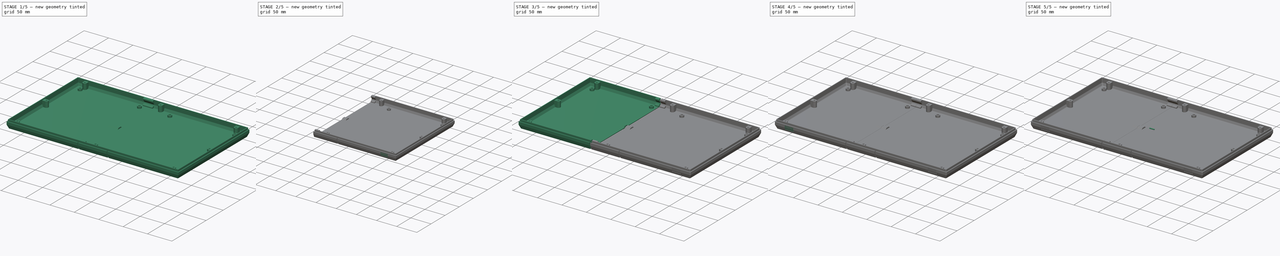
[diagram: build sequence overview — one tinted view per stage of 5, left to right]
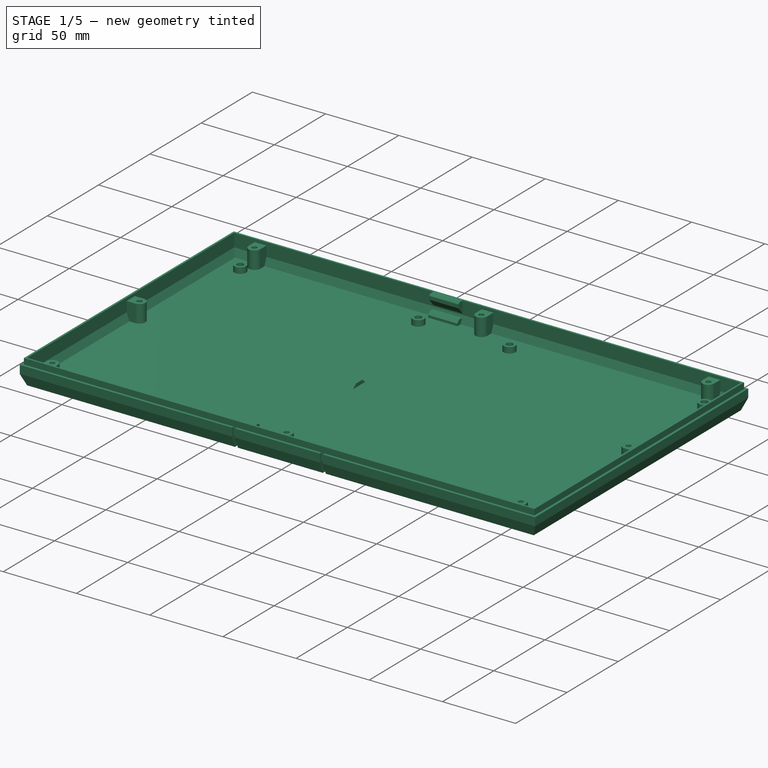
[diagram: stage 1 of 5 — iso view after this stage's code; geometry added in this stage tinted green]
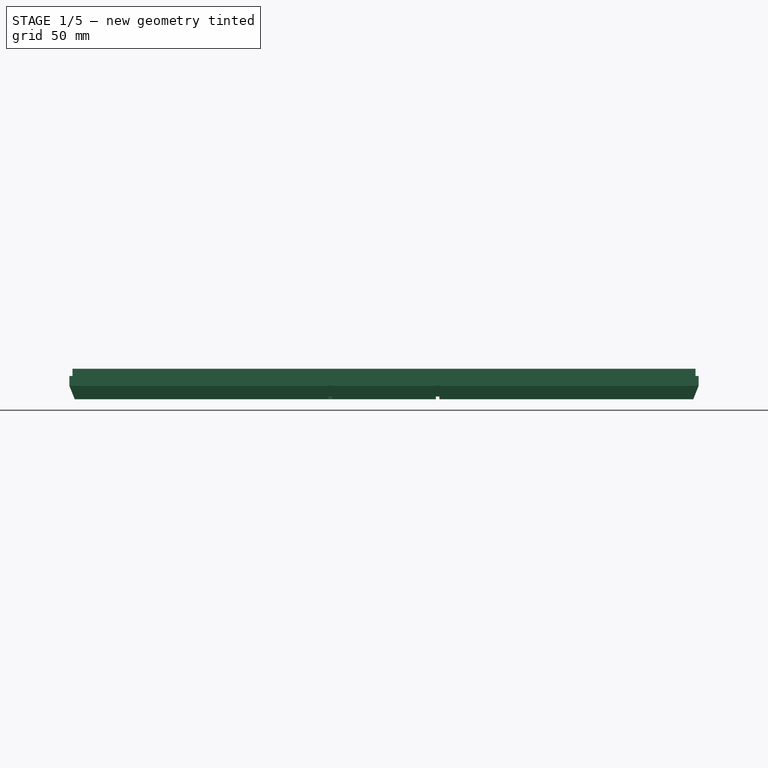
[diagram: stage 1 of 5 — front view after this stage's code; geometry added in this stage tinted green]
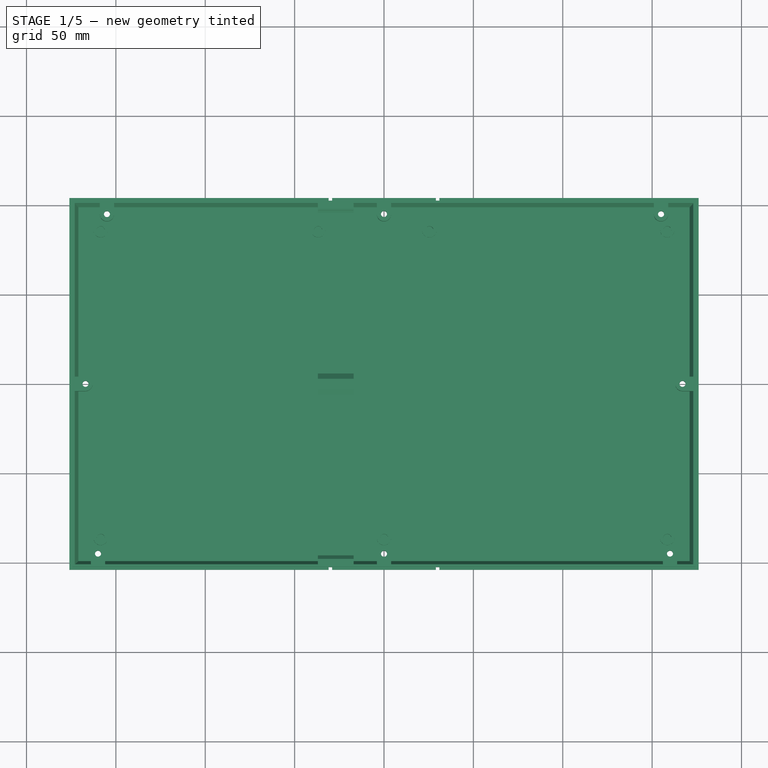
[diagram: stage 1 of 5 — top view after this stage's code; geometry added in this stage tinted green]
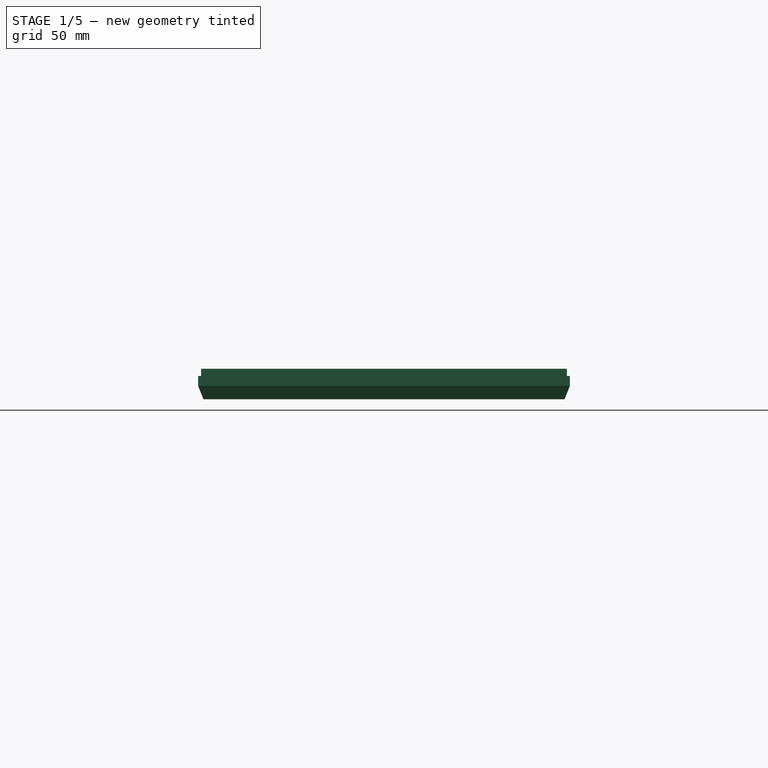
[diagram: stage 1 of 5 — right view after this stage's code; geometry added in this stage tinted green]
FCSTD DOCUMENT  (FreeCAD 0.21R33771 (Git))
Label: CaseBottomWithGroovesAndLock
License: All rights reserved
LicenseURL: https://en.wikipedia.org/wiki/All_rights_reserved
objects: Sketcher::SketchObject×9, PartDesign::Pad×4, PartDesign::Body×4, PartDesign::Pocket×4, PartDesign::FeatureBase×3, PartDesign::Plane×3, PartDesign::Chamfer×3, Part::FeaturePython×3, Part::Feature×2, PartDesign::Fillet×2, App::DocumentObjectGroup×1
note: 50 computed .brp shape members not serialized (recipe doc carries the construction recipe); baked Part::Feature solids carry a one-line shape summary decoded from their .brp

FEATURE [Part::Feature] Part__Feature  label="BottomWithGrooves"
  shape: bbox 352 x 208 x 17 mm, 158 faces (baked)
FEATURE [PartDesign::FeatureBase] BaseFeature
  BaseFeature = -> Part__Feature
FEATURE [PartDesign::Plane] DatumPlane  label="CutPlane"
  Length = 60
  MapMode = 5
  Placement = pos=(-29,6.4e-15,-1.7e-15) rot=(-0.57735,0.57735,0.57735;4.18879rad)
  ResizeMode = 0
  Support = -> [BaseFeature]
  Width = 60
FEATURE [Sketcher::SketchObject] Sketch
  ExternalGeometry = -> [BaseFeature]
  FullyConstrained = false
  MapMode = 5
  Placement = pos=(-29,6.4e-15,-1.7e-15) rot=(-0.57735,0.57735,0.57735;4.18879rad)
  Support = -> [DatumPlane]
  sketch-geometry (12):
    g0: LineSegment StartX=6 StartY=-4 StartZ=0 EndX=3 EndY=-1 EndZ=0
    g1: LineSegment StartX=3 StartY=-1 StartZ=0 EndX=-3 EndY=-1 EndZ=0
    g2: LineSegment StartX=-3 StartY=-1 StartZ=0 EndX=-6 EndY=-4 EndZ=0
    g3: LineSegment StartX=6 StartY=-4 StartZ=0 EndX=6 EndY=-6 EndZ=0
    g4: LineSegment StartX=-6 StartY=-6 StartZ=0 EndX=-6 EndY=-4 EndZ=0
    g5: LineSegment StartX=6 StartY=-6 StartZ=0 EndX=-6 EndY=-6 EndZ=0
    g6: ArcOfCircle CenterX=-3 CenterY=-3.95 CenterZ=0 NormalX=0 NormalY=0 NormalZ=1 AngleXU=0 Radius=1.05 StartAngle=2.13888 EndAngle=7.28589
    g7: LineSegment StartX=-3 StartY=-2.5 StartZ=0 EndX=-3.56492 EndY=-3.06492 EndZ=0
    g8: LineSegment StartX=-3 StartY=-2.5 StartZ=0 EndX=-2.43508 EndY=-3.06492 EndZ=0
    g9: ArcOfCircle CenterX=3 CenterY=-3.95 CenterZ=0 NormalX=0 NormalY=0 NormalZ=1 AngleXU=0 Radius=1.05 StartAngle=2.13888 EndAngle=7.28589
    g10: LineSegment StartX=3 StartY=-2.5 StartZ=0 EndX=3.56492 EndY=-3.06492 EndZ=0
    g11: LineSegment StartX=3 StartY=-2.5 StartZ=0 EndX=2.43508 EndY=-3.06492 EndZ=0
  constraints (22):
    c: Coincident(g0,g1)
    c: Horizontal(g1)
    c: Coincident(g1,g2)
    c: Coincident(g3,g0)
    c: Vertical(g3)
    c: Coincident(g4,g2)
    c: Vertical(g4)
    c: Coincident(g5,g3)
    c: Coincident(g5,g4)
    c: Horizontal(g5)
    c: Diameter(g6) = 2.1
    c: DistanceY(g6) = -3.95
    c: Coincident(g8,g7)
    c: Angle(g7,g8) = 1.5708
    c: Angle(g7,g-8) = 2.35619
    c: Coincident(g6,g7)
    c: Coincident(g6,g8)
    c: Diameter(g9) = 2.1
    c: Coincident(g11,g10)
    c: Angle(g10,g11) = -1.5708
    c: Coincident(g9,g10)
    c: Coincident(g9,g11)
FEATURE [Sketcher::SketchObject] Sketch001  label="Lock"
  ExternalGeometry = -> [BaseFeature]
  FullyConstrained = false
  MapMode = 5
  Placement = pos=(-29,6.4e-15,-1.7e-15) rot=(-0.57735,0.57735,0.57735;4.18879rad)
  Support = -> [DatumPlane]
  sketch-geometry (46):
    g0: LineSegment StartX=-6 StartY=-7 StartZ=0 EndX=-6 EndY=-4 EndZ=0
    g1: LineSegment StartX=-6 StartY=-4 StartZ=0 EndX=-3 EndY=-1.57315 EndZ=0
    g2: LineSegment StartX=-3 StartY=-1.57315 StartZ=0 EndX=3 EndY=-1.57315 EndZ=0
    g3: LineSegment StartX=3 StartY=-1.57315 StartZ=0 EndX=6 EndY=-4 EndZ=0
    g4: LineSegment StartX=6 StartY=-4 StartZ=0 EndX=6 EndY=-7 EndZ=0
    g5: LineSegment StartX=6 StartY=-7 StartZ=0 EndX=-6 EndY=-7 EndZ=0
    g6: LineSegment StartX=-100.994 StartY=-0.515798 StartZ=0 EndX=-99.3772 EndY=-4.55711 EndZ=0
    g7: LineSegment StartX=-99.3772 StartY=-4.55711 StartZ=0 EndX=-95.8337 EndY=-4.55711 EndZ=0
    g8: LineSegment StartX=-100.016 StartY=-5.5 StartZ=0 EndX=-95.3932 EndY=1.32733 EndZ=0
    g9: LineSegment StartX=-97.6902 StartY=-0.515798 StartZ=0 EndX=-100.994 EndY=-0.515798 EndZ=0
    g10: ArcOfCircle CenterX=-99.8 CenterY=7.5 CenterZ=0 NormalX=0 NormalY=0 NormalZ=1 AngleXU=0 Radius=1.05 StartAngle=2.35619 EndAngle=7.06858
    g11: LineSegment StartX=-97 StartY=9 StartZ=0 EndX=-97 EndY=6.59008 EndZ=0
    g12: LineSegment StartX=-97 StartY=6.59008 StartZ=0 EndX=-102 EndY=0.631308 EndZ=0
    g13: LineSegment StartX=-102 StartY=0.631308 StartZ=0 EndX=-102 EndY=10 EndZ=0
    g14: LineSegment StartX=-102 StartY=10 StartZ=0 EndX=-98.0131 EndY=10 EndZ=0
    g15: LineSegment StartX=-98.0131 StartY=10 StartZ=0 EndX=-97 EndY=9 EndZ=0
    g16: LineSegment StartX=-95.8337 StartY=-4.55711 StartZ=0 EndX=-95.8337 EndY=-2.37234 EndZ=0
    g17: LineSegment StartX=-95.8337 StartY=-2.37234 StartZ=0 EndX=-97.6902 EndY=-0.515798 EndZ=0
    g18: LineSegment StartX=-100.542 StartY=8.24246 StartZ=0 EndX=-99.8 EndY=8.98492 EndZ=0
    g19: LineSegment StartX=-99.0575 StartY=8.24246 StartZ=0 EndX=-99.8 EndY=8.98492 EndZ=0
    g20: ArcOfCircle CenterX=-98.3337 CenterY=-3.0158 CenterZ=0 NormalX=0 NormalY=0 NormalZ=1 AngleXU=0 Radius=1.05 StartAngle=2.35619 EndAngle=7.06858
    g21: LineSegment StartX=-99.0761 StartY=-2.27334 StartZ=0 EndX=-98.3337 EndY=-1.53087 EndZ=0
    g22: LineSegment StartX=-97.5912 StartY=-2.27334 StartZ=0 EndX=-98.3337 EndY=-1.53087 EndZ=0
    g23: ArcOfCircle CenterX=-3 CenterY=-5 CenterZ=0 NormalX=0 NormalY=0 NormalZ=1 AngleXU=0 Radius=1.05 StartAngle=2.35619 EndAngle=7.06858
    g24: LineSegment StartX=-3.74246 StartY=-4.25754 StartZ=0 EndX=-3 EndY=-3.51508 EndZ=0
    g25: LineSegment StartX=-2.25754 StartY=-4.25754 StartZ=0 EndX=-3 EndY=-3.51508 EndZ=0
    g26: LineSegment StartX=100.994 StartY=-0.515798 StartZ=0 EndX=99.3772 EndY=-4.55711 EndZ=0
    g27: LineSegment StartX=99.3772 StartY=-4.55711 StartZ=0 EndX=95.8337 EndY=-4.55711 EndZ=0
    g28: LineSegment StartX=100.016 StartY=-5.5 StartZ=0 EndX=95.3932 EndY=1.32733 EndZ=0
    g29: LineSegment StartX=97.6902 StartY=-0.515798 StartZ=0 EndX=100.994 EndY=-0.515798 EndZ=0
    g30: ArcOfCircle CenterX=99.8 CenterY=7.5 CenterZ=0 NormalX=0 NormalY=0 NormalZ=1 AngleXU=0 Radius=1.05 StartAngle=2.35619 EndAngle=7.06858
    g31: LineSegment StartX=97 StartY=9 StartZ=0 EndX=97 EndY=6.59008 EndZ=0
    g32: LineSegment StartX=97 StartY=6.59008 StartZ=0 EndX=102 EndY=0.631308 EndZ=0
    g33: LineSegment StartX=102 StartY=0.631308 StartZ=0 EndX=102 EndY=10 EndZ=0
    g34: LineSegment StartX=102 StartY=10 StartZ=0 EndX=98.0131 EndY=10 EndZ=0
    g35: LineSegment StartX=98.0131 StartY=10 StartZ=0 EndX=97 EndY=9 EndZ=0
    g36: LineSegment StartX=95.8337 StartY=-4.55711 StartZ=0 EndX=95.8337 EndY=-2.37234 EndZ=0
    g37: LineSegment StartX=95.8337 StartY=-2.37234 StartZ=0 EndX=97.6902 EndY=-0.515798 EndZ=0
    g38: LineSegment StartX=100.542 StartY=8.24246 StartZ=0 EndX=99.8 EndY=8.98492 EndZ=0
    g39: LineSegment StartX=99.0575 StartY=8.24246 StartZ=0 EndX=99.8 EndY=8.98492 EndZ=0
    g40: ArcOfCircle CenterX=98.3337 CenterY=-3.0158 CenterZ=0 NormalX=0 NormalY=0 NormalZ=1 AngleXU=0 Radius=1.05 StartAngle=2.35619 EndAngle=7.06858
    g41: LineSegment StartX=99.0761 StartY=-2.27334 StartZ=0 EndX=98.3337 EndY=-1.53087 EndZ=0
    g42: LineSegment StartX=97.5912 StartY=-2.27334 StartZ=0 EndX=98.3337 EndY=-1.53087 EndZ=0
    g43: ArcOfCircle CenterX=3 CenterY=-5 CenterZ=0 NormalX=0 NormalY=0 NormalZ=1 AngleXU=0 Radius=1.05 StartAngle=2.35619 EndAngle=7.06858
    g44: LineSegment StartX=3.74246 StartY=-4.25754 StartZ=0 EndX=3 EndY=-3.51508 EndZ=0
    g45: LineSegment StartX=2.25754 StartY=-4.25754 StartZ=0 EndX=3 EndY=-3.51508 EndZ=0
  constraints (104):
    c: Vertical(g0)
    c: Coincident(g0,g1)
    c: Coincident(g1,g2)
    c: Horizontal(g2)
    c: Coincident(g2,g3)
    c: Coincident(g3,g4)
    c: Vertical(g4)
    c: Coincident(g4,g5)
    c: Coincident(g5,g0)
    c: Horizontal(g5)
    c: Coincident(g6,g7)
    c: Horizontal(g7)
    c: Parallel(g6,g-3)
    c: Coincident(g8,g-5)
    c: PointOnObject(g-4,g8)
    c: PointOnObject(g6,g8)
    c: Coincident(g9,g6)
    c: Vertical(g11)
    c: Coincident(g11,g12)
    c: Coincident(g12,g13)
    c: Vertical(g13)
    c: Coincident(g13,g14)
    c: Coincident(g15,g11)
    c: Coincident(g14,g15)
    c: Horizontal(g14)
    c: Block(g14)
    c: Block(g15)
    c: Angle(g12,g13) = 0.698132
    c: Coincident(g16,g7)
    c: Vertical(g16)
    c: Coincident(g17,g16)
    c: Parallel(g-4,g9)
    c: Coincident(g9,g17)
    c: Angle(g17,g-4) = 0.785398
    c: Block(g17)
    c: Block(g6)
    c: Angle(g14,g19) = 2.35619
    c: Angle(g14,g18) = 0.785398
    c: Block(g10)
    c: Coincident(g18,g19)
    c: Tangent(g10,g19) = -1.5708
    c: Tangent(g10,g18) = 1.5708
    c: Block(g18)
    c: Block(g19)
    c: Diameter(g10) = 2.1
    c: Block(g13)
    c: Block(g20)
    c: Coincident(g21,g22)
    c: Tangent(g20,g22) = -1.5708
    c: Tangent(g20,g21) = 1.5708
    c: Block(g21)
    c: Block(g22)
    c: Equal(g10,g20) = 2.1
    c: Block(g23)
    c: Coincident(g24,g25)
    c: Tangent(g23,g25) = -1.5708
    c: Tangent(g23,g24) = 1.5708
    c: Block(g24)
    c: Block(g25)
    c: Equal(g10,g23) = 2.1
    c: Coincident(g26,g27)
    c: Horizontal(g27)
    c: PointOnObject(g26,g28)
    c: Coincident(g29,g26)
    c: Vertical(g31)
    c: Coincident(g31,g32)
    c: Coincident(g32,g33)
    c: Vertical(g33)
    c: Coincident(g33,g34)
    c: Coincident(g35,g31)
    c: Coincident(g34,g35)
    c: Horizontal(g34)
    c: Block(g34)
    c: Block(g35)
    c: Angle(g32,g33) = -0.698132
    c: Coincident(g36,g27)
    c: Vertical(g36)
    c: Coincident(g37,g36)
    c: Coincident(g29,g37)
    c: Block(g37)
    c: Block(g26)
    c: Angle(g34,g39) = -2.35619
    c: Angle(g34,g38) = -0.785398
    c: Block(g30)
    c: Coincident(g38,g39)
    c: Tangent(g30,g39) = 1.5708
    c: Tangent(g30,g38) = -1.5708
    c: Block(g38)
    c: Block(g39)
    c: Diameter(g30) = 2.1
    c: Block(g33)
    c: Block(g40)
    c: Coincident(g41,g42)
    c: Tangent(g40,g42) = 1.5708
    c: Tangent(g40,g41) = -1.5708
    c: Block(g41)
    c: Block(g42)
    c: Equal(g30,g40) = 2.1
    c: Block(g43)
    c: Coincident(g44,g45)
    c: Tangent(g43,g45) = 1.5708
    c: Tangent(g43,g44) = -1.5708
    c: Block(g44)
    c: Block(g45)
FEATURE [PartDesign::Pad] Pad  label="Locks"
  BaseFeature = -> BaseFeature
  Direction = (-1,2e-16,2e-16)
  Length = 8
  Length2 = 12
  Midplane = true
  Profile = -> Sketch001
  ReferenceAxis = -> Sketch001 [N_Axis]
  Refine = true
  Type = 4
FEATURE [PartDesign::Body] Body001  label="Pin"
  Group = -> [Sketch002,Pad001,Chamfer]
  Origin = -> Origin001
  Placement = pos=(-29,-98.3,-3) rot=(0,0,1;0rad)
  Tip = -> Chamfer
FEATURE [PartDesign::Plane] DatumPlane001
  AttachmentOffset = pos=(0,0,-29) rot=(0,0,1;0rad)
  Length = 228.396
  MapMode = 5
  Placement = pos=(-29,6.4e-15,-6.4e-15) rot=(0.57735,0.57735,0.57735;2.0944rad)
  ResizeMode = 0
  Support = -> [YZ_Plane002]
  Width = 70.3961
FEATURE [PartDesign::Plane] DatumPlane002
  AttachmentOffset = pos=(0,0,-29) rot=(0,0,1;0rad)
  Length = 228.396
  MapMode = 5
  Placement = pos=(-29,6.4e-15,-6.4e-15) rot=(0.57735,0.57735,0.57735;2.0944rad)
  ResizeMode = 0
  Support = -> [YZ_Plane003]
  Width = 70.3961
FEATURE [Part::Feature] Part__Feature001  label="TopLid"
  Placement = pos=(0,0,2) rot=(0,0,1;0rad)
  shape: bbox 352 x 208 x 55 mm, 124 faces (baked)
FEATURE [Sketcher::SketchObject] Sketch007  label="Teardrops"
  AttachmentOffset = pos=(0,0,-2) rot=(0,0,1;0rad)
  FullyConstrained = true
  MapMode = 5
  Placement = pos=(-27,5.9e-15,-2.2e-15) rot=(-0.57735,0.57735,0.57735;4.18879rad)
  Support = -> [DatumPlane]
  sketch-geometry (18):
    g0: LineSegment StartX=-100.542 StartY=8.24246 StartZ=0 EndX=-99.8 EndY=8.98492 EndZ=0
    g1: LineSegment StartX=-99.8 StartY=8.98492 StartZ=0 EndX=-99.0575 EndY=8.24246 EndZ=0
    g2: ArcOfCircle CenterX=-99.8 CenterY=7.5 CenterZ=0 NormalX=0 NormalY=0 NormalZ=1 AngleXU=0 Radius=1.05 StartAngle=2.35619 EndAngle=7.06858
    g3: LineSegment StartX=-99.0761 StartY=-2.27334 StartZ=0 EndX=-98.3337 EndY=-1.53087 EndZ=0
    g4: LineSegment StartX=-98.3337 StartY=-1.53087 StartZ=0 EndX=-97.5912 EndY=-2.27334 EndZ=0
    g5: ArcOfCircle CenterX=-98.3337 CenterY=-3.0158 CenterZ=0 NormalX=0 NormalY=0 NormalZ=1 AngleXU=0 Radius=1.05 StartAngle=2.35619 EndAngle=7.06858
    g6: LineSegment StartX=100.542 StartY=8.24246 StartZ=0 EndX=99.8 EndY=8.98492 EndZ=0
    g7: LineSegment StartX=99.8 StartY=8.98492 StartZ=0 EndX=99.0575 EndY=8.24246 EndZ=0
    g8: ArcOfCircle CenterX=99.8 CenterY=7.5 CenterZ=0 NormalX=0 NormalY=0 NormalZ=1 AngleXU=0 Radius=1.05 StartAngle=2.35619 EndAngle=7.06858
    g9: LineSegment StartX=99.0761 StartY=-2.27334 StartZ=0 EndX=98.3337 EndY=-1.53087 EndZ=0
    g10: LineSegment StartX=98.3337 StartY=-1.53087 StartZ=0 EndX=97.5912 EndY=-2.27334 EndZ=0
    g11: ArcOfCircle CenterX=98.3337 CenterY=-3.0158 CenterZ=0 NormalX=0 NormalY=0 NormalZ=1 AngleXU=0 Radius=1.05 StartAngle=2.35619 EndAngle=7.06858
    g12: LineSegment StartX=-3.74246 StartY=-3.25754 StartZ=0 EndX=-3 EndY=-2.51508 EndZ=0
    g13: LineSegment StartX=-3 StartY=-2.51508 StartZ=0 EndX=-2.25754 EndY=-3.25754 EndZ=0
    g14: ArcOfCircle CenterX=-3 CenterY=-4 CenterZ=0 NormalX=0 NormalY=0 NormalZ=1 AngleXU=0 Radius=1.05 StartAngle=2.35619 EndAngle=7.06858
    g15: LineSegment StartX=3.74246 StartY=-3.25754 StartZ=0 EndX=3 EndY=-2.51508 EndZ=0
    g16: LineSegment StartX=3 StartY=-2.51508 StartZ=0 EndX=2.25754 EndY=-3.25754 EndZ=0
    g17: ArcOfCircle CenterX=3 CenterY=-4 CenterZ=0 NormalX=0 NormalY=0 NormalZ=1 AngleXU=0 Radius=1.05 StartAngle=2.35619 EndAngle=7.06858
  constraints (36):
    c: Coincident(g0,g1)
    c: Tangent(g1,g2) = 1.5708
    c: Coincident(g2,g0)
    c: Block(g1)
    c: Block(g0)
    c: Block(g2)
    c: Coincident(g3,g4)
    c: Tangent(g4,g5) = 1.5708
    c: Coincident(g5,g3)
    c: Block(g4)
    c: Block(g3)
    c: Block(g5)
    c: Coincident(g6,g7)
    c: Tangent(g7,g8) = -1.5708
    c: Coincident(g8,g6)
    c: Block(g7)
    c: Block(g6)
    c: Block(g8)
    c: Coincident(g9,g10)
    c: Tangent(g10,g11) = -1.5708
    c: Coincident(g11,g9)
    c: Block(g10)
    c: Block(g9)
    c: Block(g11)
    c: Coincident(g12,g13)
    c: Tangent(g13,g14) = 1.5708
    c: Coincident(g14,g12)
    c: Block(g13)
    c: Block(g12)
    c: Block(g14)
    c: Coincident(g15,g16)
    c: Tangent(g16,g17) = -1.5708
    c: Coincident(g17,g15)
    c: Block(g16)
    c: Block(g15)
    c: Block(g17)
FEATURE [PartDesign::Pocket] Pocket001  label="TearDrops"
  BaseFeature = -> Pad
  Direction = (1,-2e-16,-2e-16)
  Length = 18
  Length2 = 5
  Midplane = true
  Profile = -> Sketch007
  ReferenceAxis = -> Sketch007 [N_Axis]
  Refine = true
  Type = 0
FEATURE [PartDesign::Body] Body
  BaseFeature = -> Part__Feature
  Group = -> [BaseFeature,DatumPlane,Sketch,Sketch001,Pad,Sketch007,Pocket001]
  Origin = -> Origin
  Tip = -> Pocket001
FEATURE [Part::FeaturePython] Slice  # WARN: FeaturePython — macro-defined, semantics opaque (R4)
  Base = -> Pocket001
  Mode = 1
  Tolerance = 0
  Tools = -> [DatumPlane]
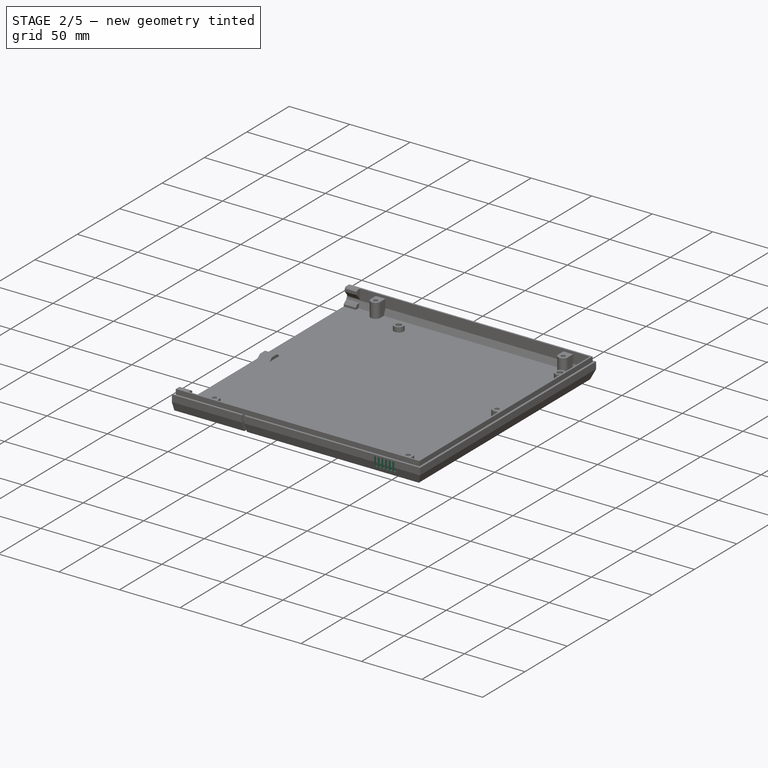
[diagram: stage 2 of 5 — iso view after this stage's code; geometry added in this stage tinted green]
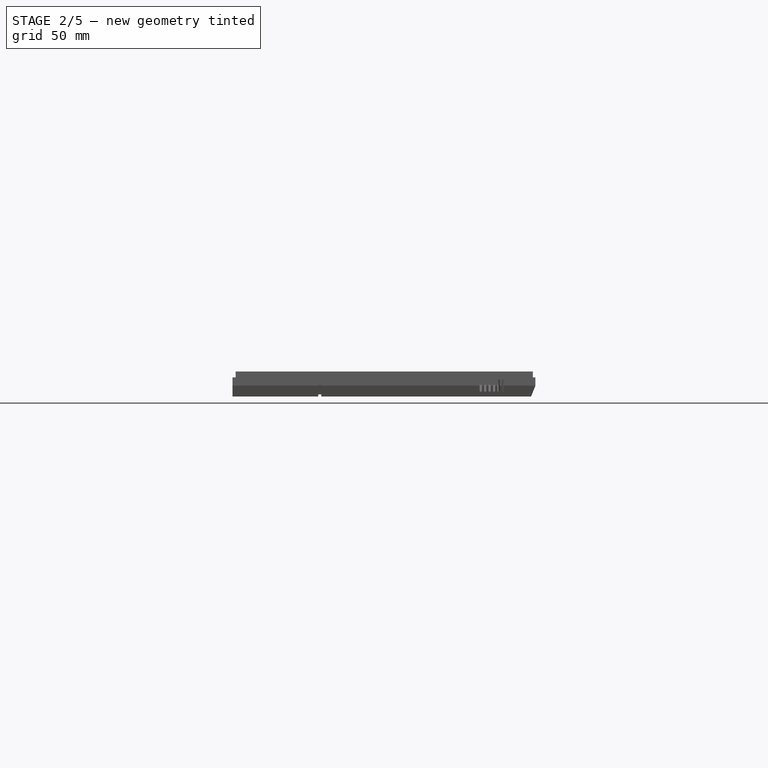
[diagram: stage 2 of 5 — front view after this stage's code; geometry added in this stage tinted green]
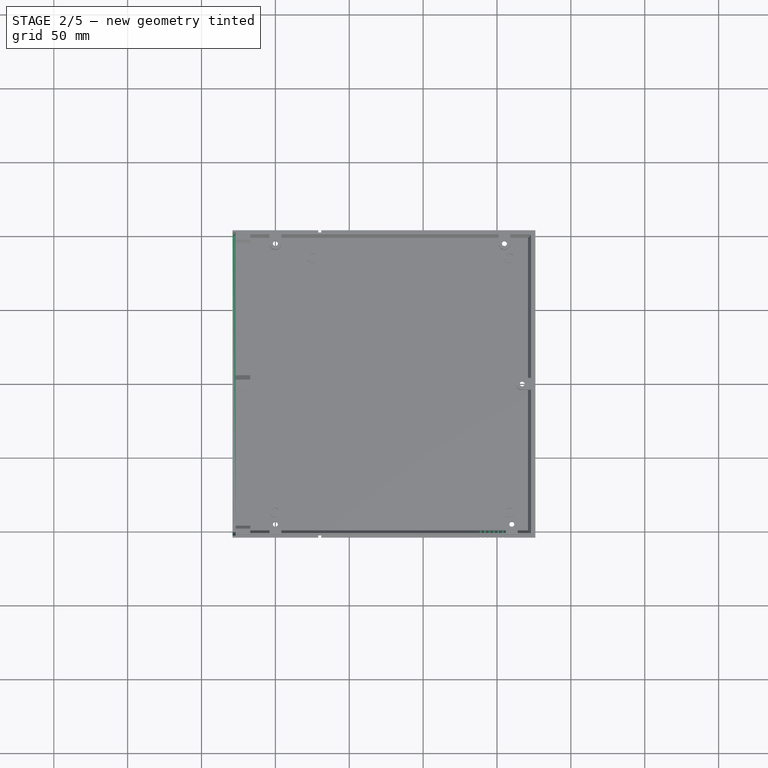
[diagram: stage 2 of 5 — top view after this stage's code; geometry added in this stage tinted green]
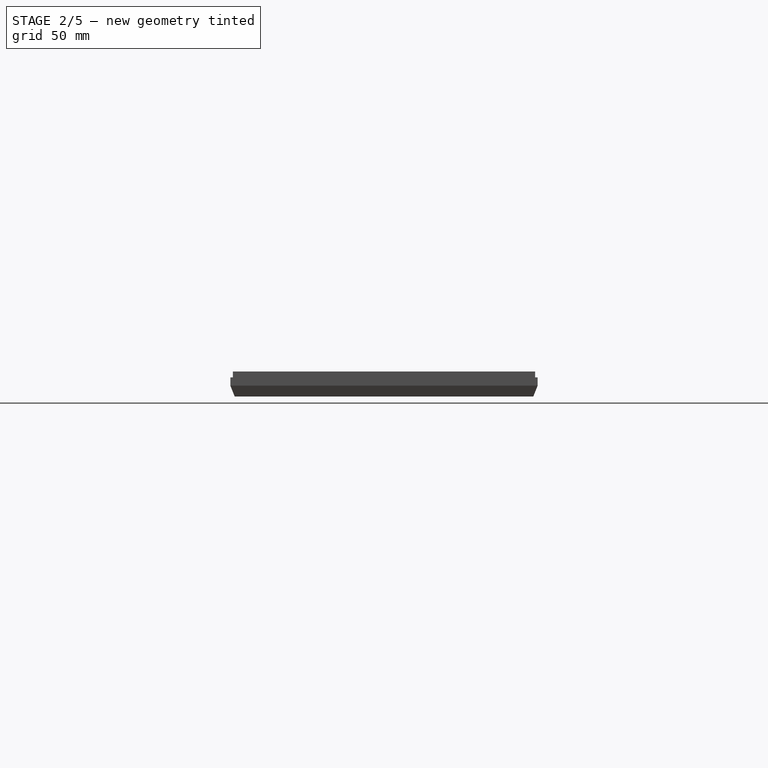
[diagram: stage 2 of 5 — right view after this stage's code; geometry added in this stage tinted green]
FEATURE [Part::FeaturePython] Slice_child1  label="Slice.1"  # WARN: FeaturePython — macro-defined, semantics opaque (R4)
  Base = -> Slice
  FilterType = 1
  Invert = false
  OverrideMaxVal = 0
  WindowFrom = 80
  WindowTo = 100
  items = 1
FEATURE [PartDesign::FeatureBase] BaseFeature001
  BaseFeature = -> Slice_child1
FEATURE [Sketcher::SketchObject] Sketch003  label="Cavity"
  ExternalGeometry = -> [BaseFeature001]
  FullyConstrained = true
  MapMode = 5
  Placement = pos=(-29,6.4e-15,-6.4e-15) rot=(0.57735,0.57735,0.57735;2.0944rad)
  Support = -> [DatumPlane001]
  sketch-geometry (10):
    g0: LineSegment StartX=-102.7 StartY=10.5225 StartZ=0 EndX=0 EndY=10.5225 EndZ=0
    g1: LineSegment StartX=-102.7 StartY=10.5225 StartZ=0 EndX=-102.7 EndY=0.67261 EndZ=0
    g2: LineSegment StartX=-102.7 StartY=0.67261 StartZ=0 EndX=-100.151 EndY=-5.7 EndZ=0
    g3: LineSegment StartX=-100.151 StartY=-5.7 StartZ=0 EndX=0 EndY=-5.7 EndZ=0
    g4: LineSegment StartX=-104 StartY=0.422253 StartZ=0 EndX=-98.9699 EndY=1.39096 EndZ=0
    g5: LineSegment StartX=102.7 StartY=10.5225 StartZ=0 EndX=0 EndY=10.5225 EndZ=0
    g6: LineSegment StartX=102.7 StartY=10.5225 StartZ=0 EndX=102.7 EndY=0.67261 EndZ=0
    g7: LineSegment StartX=102.7 StartY=0.67261 StartZ=0 EndX=100.151 EndY=-5.7 EndZ=0
    g8: LineSegment StartX=100.151 StartY=-5.7 StartZ=0 EndX=0 EndY=-5.7 EndZ=0
    g9: LineSegment StartX=104 StartY=0.422253 StartZ=0 EndX=98.9699 EndY=1.39096 EndZ=0
  constraints (20):
    c: Horizontal(g0)
    c: Coincident(g0,g1)
    c: Vertical(g1)
    c: Coincident(g1,g2)
    c: Coincident(g2,g3)
    c: Horizontal(g3)
    c: Block(g4)
    c: PointOnObject(g1,g4)
    c: Block(g0)
    c: Block(g3)
    c: Horizontal(g5)
    c: Coincident(g5,g6)
    c: Vertical(g6)
    c: Coincident(g6,g7)
    c: Coincident(g7,g8)
    c: Horizontal(g8)
    c: Block(g9)
    c: PointOnObject(g6,g9)
    c: Block(g5)
    c: Block(g8)
FEATURE [PartDesign::Pocket] Pocket
  BaseFeature = -> BaseFeature001
  Direction = (-1,1e-16,-1e-16)
  Length = 2.1
  Length2 = 5
  Profile = -> Sketch003
  ReferenceAxis = -> Sketch003 [N_Axis]
  Refine = true
  Reversed = true
  Type = 0
FEATURE [PartDesign::Body] Body003  label="Left"
  BaseFeature = -> Slice_child0
  Group = -> [BaseFeature002,DatumPlane002,Sketch004,Pad002,Sketch008,Pocket002,Sketch009,Chamfer001,Fillet,Chamfer003,Pad003]
  Origin = -> Origin003
  Tip = -> Pad003
FEATURE [Sketcher::SketchObject] Sketch010  label="RightVents"
  AttachmentOffset = pos=(0,0,95) rot=(0,0,1;0rad)
  FullyConstrained = true
  MapMode = 5
  Placement = pos=(0,-95,-2.11e-14) rot=(1,0,0;1.5708rad)
  Support = -> [XZ_Plane002]
  sketch-geometry (29):
    g0: ArcOfCircle CenterX=154 CenterY=4 CenterZ=0 NormalX=0 NormalY=0 NormalZ=1 AngleXU=0 Radius=0.75 StartAngle=2.60516e-11 EndAngle=3.14159
    g1: ArcOfCircle CenterX=154 CenterY=-3 CenterZ=0 NormalX=0 NormalY=0 NormalZ=1 AngleXU=0 Radius=0.75 StartAngle=3.14159 EndAngle=6.28319
    g2: LineSegment StartX=153.25 StartY=4 StartZ=0 EndX=153.25 EndY=-3 EndZ=0
    g3: LineSegment StartX=154.75 StartY=-3 StartZ=0 EndX=154.75 EndY=4 EndZ=0
    g4: ArcOfCircle CenterX=151 CenterY=4 CenterZ=0 NormalX=0 NormalY=0 NormalZ=1 AngleXU=0 Radius=0.75 StartAngle=0 EndAngle=3.14159
    g5: ArcOfCircle CenterX=151 CenterY=-3 CenterZ=0 NormalX=0 NormalY=0 NormalZ=1 AngleXU=0 Radius=0.75 StartAngle=3.14159 EndAngle=6.28319
    g6: LineSegment StartX=150.25 StartY=4 StartZ=0 EndX=150.25 EndY=-3 EndZ=0
    g7: LineSegment StartX=151.75 StartY=-3 StartZ=0 EndX=151.75 EndY=4 EndZ=0
    g8: LineSegment StartX=154.75 StartY=4 StartZ=0 EndX=151.75 EndY=4 EndZ=0
    g9: ArcOfCircle CenterX=148 CenterY=4 CenterZ=0 NormalX=0 NormalY=0 NormalZ=1 AngleXU=0 Radius=0.75 StartAngle=0 EndAngle=3.14159
    g10: ArcOfCircle CenterX=148 CenterY=-3 CenterZ=0 NormalX=0 NormalY=0 NormalZ=1 AngleXU=0 Radius=0.75 StartAngle=3.14159 EndAngle=6.28319
    g11: LineSegment StartX=147.25 StartY=4 StartZ=0 EndX=147.25 EndY=-3 EndZ=0
    g12: LineSegment StartX=148.75 StartY=-3 StartZ=0 EndX=148.75 EndY=4 EndZ=0
    g13: LineSegment StartX=151.75 StartY=4 StartZ=0 EndX=148.75 EndY=4 EndZ=0
    g14: ArcOfCircle CenterX=145 CenterY=4 CenterZ=0 NormalX=0 NormalY=0 NormalZ=1 AngleXU=0 Radius=0.75 StartAngle=0 EndAngle=3.14159
    g15: ArcOfCircle CenterX=145 CenterY=-3 CenterZ=0 NormalX=0 NormalY=0 NormalZ=1 AngleXU=0 Radius=0.75 StartAngle=3.14159 EndAngle=6.28319
    g16: LineSegment StartX=144.25 StartY=4 StartZ=0 EndX=144.25 EndY=-3 EndZ=0
    g17: LineSegment StartX=145.75 StartY=-3 StartZ=0 EndX=145.75 EndY=4 EndZ=0
    g18: LineSegment StartX=148.75 StartY=4 StartZ=0 EndX=145.75 EndY=4 EndZ=0
    g19: ArcOfCircle CenterX=142 CenterY=4 CenterZ=0 NormalX=0 NormalY=0 NormalZ=1 AngleXU=0 Radius=0.75 StartAngle=0 EndAngle=3.14159
    g20: ArcOfCircle CenterX=142 CenterY=-3 CenterZ=0 NormalX=0 NormalY=0 NormalZ=1 AngleXU=0 Radius=0.75 StartAngle=3.14159 EndAngle=6.28319
    g21: LineSegment StartX=141.25 StartY=4 StartZ=0 EndX=141.25 EndY=-3 EndZ=0
    g22: LineSegment StartX=142.75 StartY=-3 StartZ=0 EndX=142.75 EndY=4 EndZ=0
    g23: LineSegment StartX=145.75 StartY=4 StartZ=0 EndX=142.75 EndY=4 EndZ=0
    g24: ArcOfCircle CenterX=139 CenterY=4 CenterZ=0 NormalX=0 NormalY=0 NormalZ=1 AngleXU=0 Radius=0.75 StartAngle=0 EndAngle=3.14159
    g25: ArcOfCircle CenterX=139 CenterY=-3 CenterZ=0 NormalX=0 NormalY=0 NormalZ=1 AngleXU=0 Radius=0.75 StartAngle=3.14159 EndAngle=6.28319
    g26: LineSegment StartX=138.25 StartY=4 StartZ=0 EndX=138.25 EndY=-3 EndZ=0
    g27: LineSegment StartX=139.75 StartY=-3 StartZ=0 EndX=139.75 EndY=4 EndZ=0
    g28: LineSegment StartX=142.75 StartY=4 StartZ=0 EndX=139.75 EndY=4 EndZ=0
  constraints (70):
    c: Tangent(g0,g2) = -1.5708
    c: Tangent(g2,g1) = -1.5708
    c: Tangent(g1,g3) = -1.5708
    c: Tangent(g3,g0) = -1.5708
    c: Equal(g0,g1)
    c: Vertical(g2)
    c: DistanceX(g0) = 154
    c: DistanceY(g1,g0) = 7
    c: DistanceY(g0) = 4
    c: Diameter(g0) = 1.5
    c: Tangent(g4,g6) = -1.5708
    c: Tangent(g6,g5) = -1.5708
    c: Tangent(g5,g7) = -1.5708
    c: Tangent(g7,g4) = -1.5708
    c: Equal(g4,g5)
    c: Vertical(g6)
    c: DistanceY(g5,g4) = 7
    c: Equal(g0,g4) = 1.5
    c: Coincident(g0,g8)
    c: Coincident(g4,g8)
    c: Distance(g8) = 3
    c: Angle(g8) = -3.14159
    c: Tangent(g9,g11) = -1.5708
    c: Tangent(g11,g10) = -1.5708
    c: Tangent(g10,g12) = -1.5708
    c: Tangent(g12,g9) = -1.5708
    c: Equal(g9,g10)
    c: Vertical(g11)
    c: DistanceY(g10,g9) = 7
    c: Equal(g0,g9) = 1.5
    c: Coincident(g4,g13)
    c: Coincident(g9,g13)
    c: Equal(g8,g13)
    c: Parallel(g13,g8)
    c: Tangent(g14,g16) = -1.5708
    c: Tangent(g16,g15) = -1.5708
    c: Tangent(g15,g17) = -1.5708
    c: Tangent(g17,g14) = -1.5708
    c: Equal(g14,g15)
    c: Vertical(g16)
    c: DistanceY(g15,g14) = 7
    c: Equal(g0,g14) = 1.5
    c: Coincident(g9,g18)
    c: Coincident(g14,g18)
    c: Equal(g8,g18)
    c: Parallel(g18,g8)
    c: Tangent(g19,g21) = -1.5708
    c: Tangent(g21,g20) = -1.5708
    c: Tangent(g20,g22) = -1.5708
    c: Tangent(g22,g19) = -1.5708
    c: Equal(g19,g20)
    c: Vertical(g21)
    c: DistanceY(g20,g19) = 7
    c: Equal(g0,g19) = 1.5
    c: Coincident(g14,g23)
    c: Coincident(g19,g23)
    c: Equal(g8,g23)
    c: Parallel(g23,g8)
    c: Tangent(g24,g26) = -1.5708
    c: Tangent(g26,g25) = -1.5708
    c: Tangent(g25,g27) = -1.5708
    c: Tangent(g27,g24) = -1.5708
    c: Equal(g24,g25)
    c: Vertical(g26)
    c: DistanceY(g25,g24) = 7
    c: Equal(g0,g24) = 1.5
    c: Coincident(g19,g28)
    c: Coincident(g24,g28)
    c: Equal(g8,g28)
    c: Parallel(g28,g8)
FEATURE [PartDesign::Pocket] Pocket003  label="RightVents001"
  BaseFeature = -> Pocket
  Direction = (0,1,2e-16)
  Length = 5
  Length2 = 5
  Profile = -> Sketch010
  ReferenceAxis = -> Sketch010 [N_Axis]
  Refine = true
  Reversed = true
  Type = 1
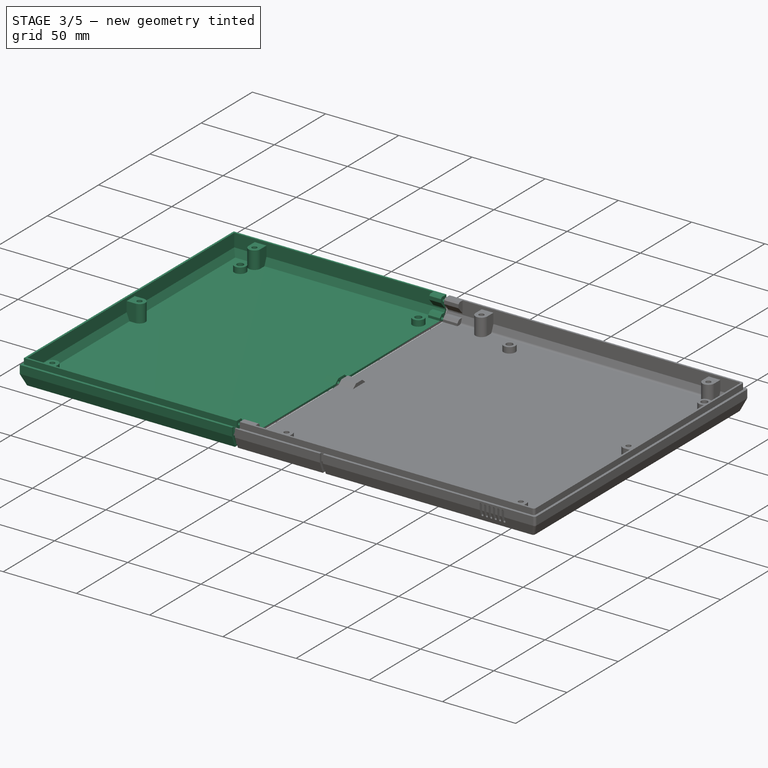
[diagram: stage 3 of 5 — iso view after this stage's code; geometry added in this stage tinted green]
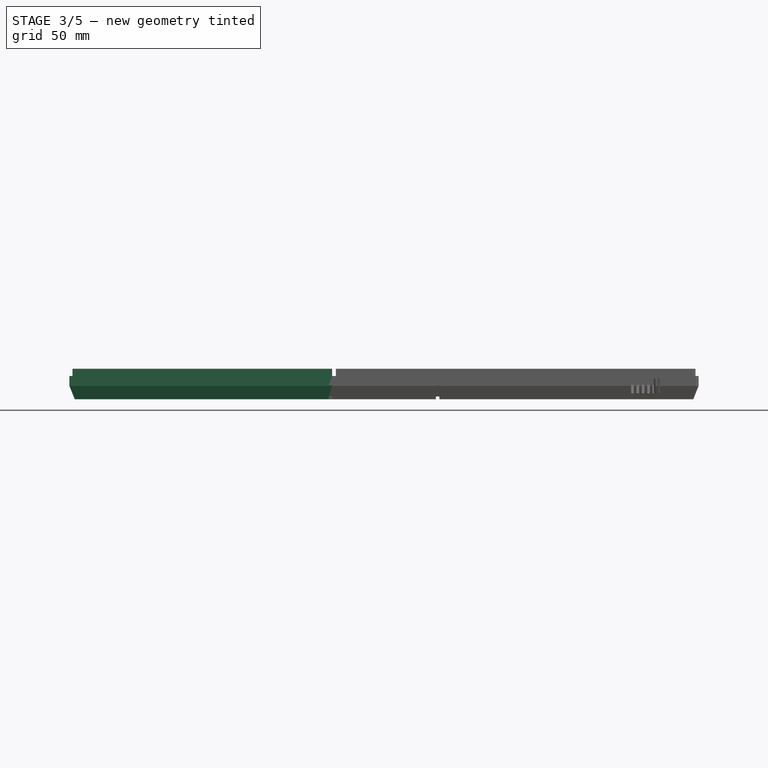
[diagram: stage 3 of 5 — front view after this stage's code; geometry added in this stage tinted green]
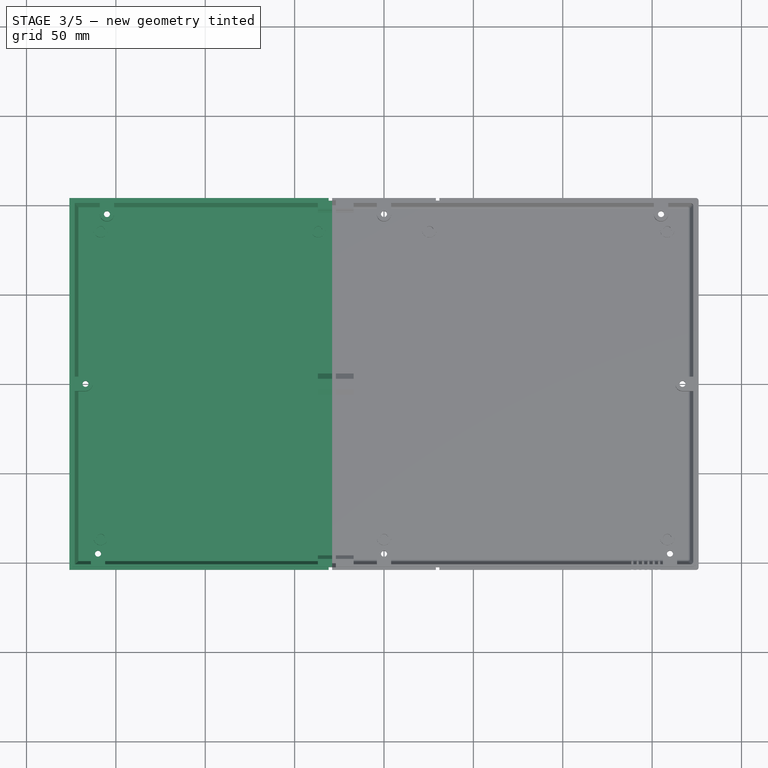
[diagram: stage 3 of 5 — top view after this stage's code; geometry added in this stage tinted green]
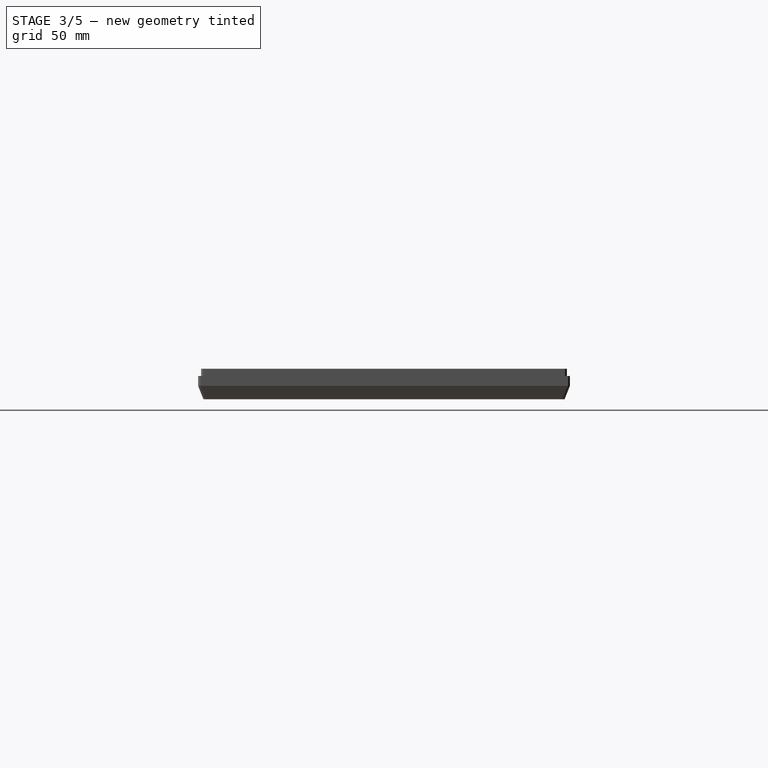
[diagram: stage 3 of 5 — right view after this stage's code; geometry added in this stage tinted green]
FEATURE [Part::FeaturePython] Slice_child0  label="Slice.0"  # WARN: FeaturePython — macro-defined, semantics opaque (R4)
  Base = -> Slice
  FilterType = 1
  Invert = false
  OverrideMaxVal = 0
  WindowFrom = 80
  WindowTo = 100
  items = 0
FEATURE [PartDesign::FeatureBase] BaseFeature002
  BaseFeature = -> Slice_child0
FEATURE [PartDesign::Fillet] Fillet001  label="RightFillet"
  Base = -> Pocket003 [Edge469,Edge449,Edge350,Edge417,Edge407,Edge329,Edge67,Edge210,Edge392,Edge10,Edge11,Edge6,Edge2,Edge15,Edge16,Edge81,Edge216,Edge397,Edge20,Edge24]
  BaseFeature = -> Pocket003
  Radius = 1.5
  Refine = true
  SupportTransform = false
  UseAllEdges = false
FEATURE [PartDesign::Body] Body002  label="Right"
  BaseFeature = -> Slice_child1
  Group = -> [BaseFeature001,DatumPlane001,Sketch003,Pocket,Sketch010,Pocket003,Fillet001]
  Origin = -> Origin002
  Tip = -> Fillet001
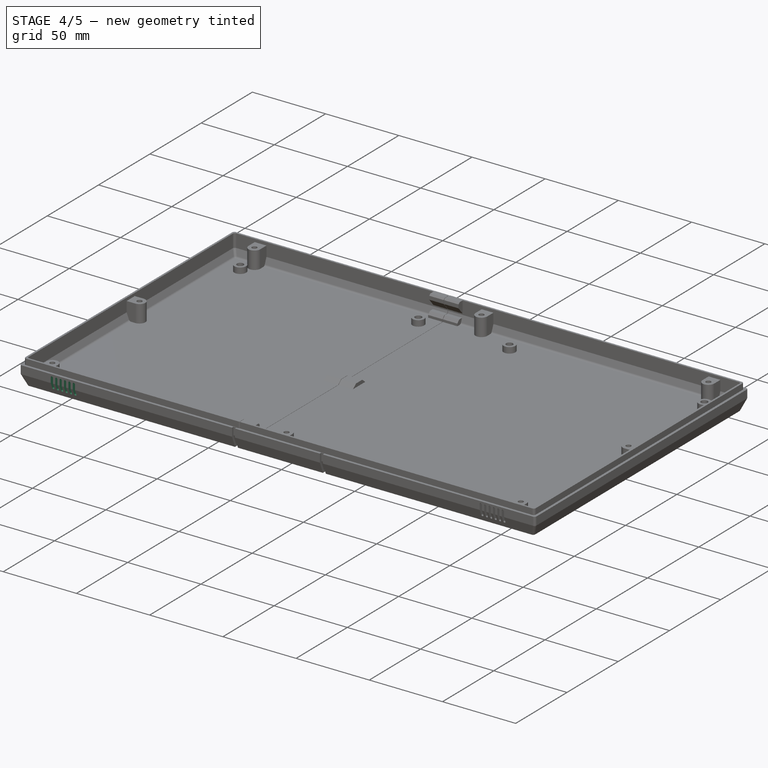
[diagram: stage 4 of 5 — iso view after this stage's code; geometry added in this stage tinted green]
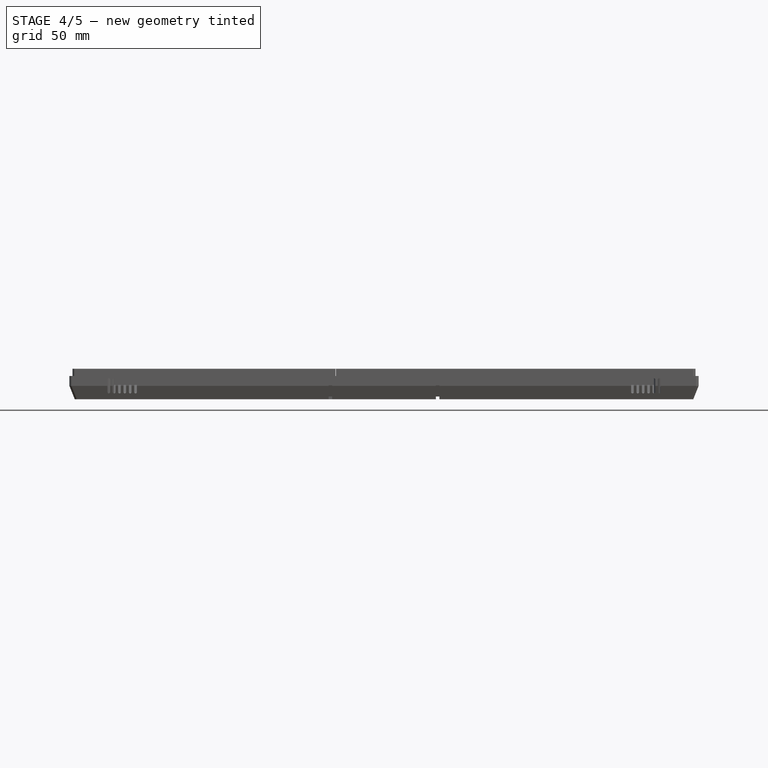
[diagram: stage 4 of 5 — front view after this stage's code; geometry added in this stage tinted green]
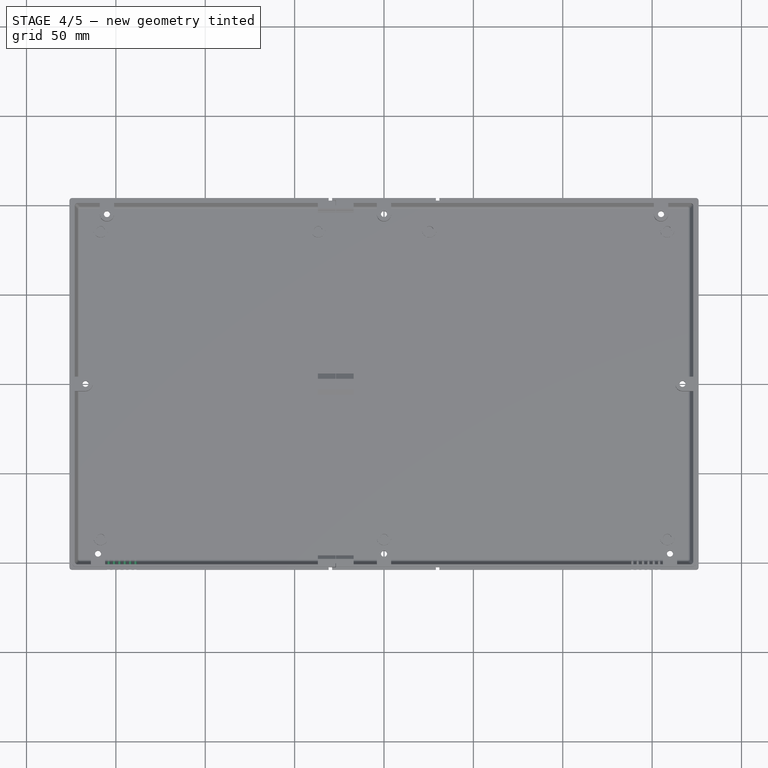
[diagram: stage 4 of 5 — top view after this stage's code; geometry added in this stage tinted green]
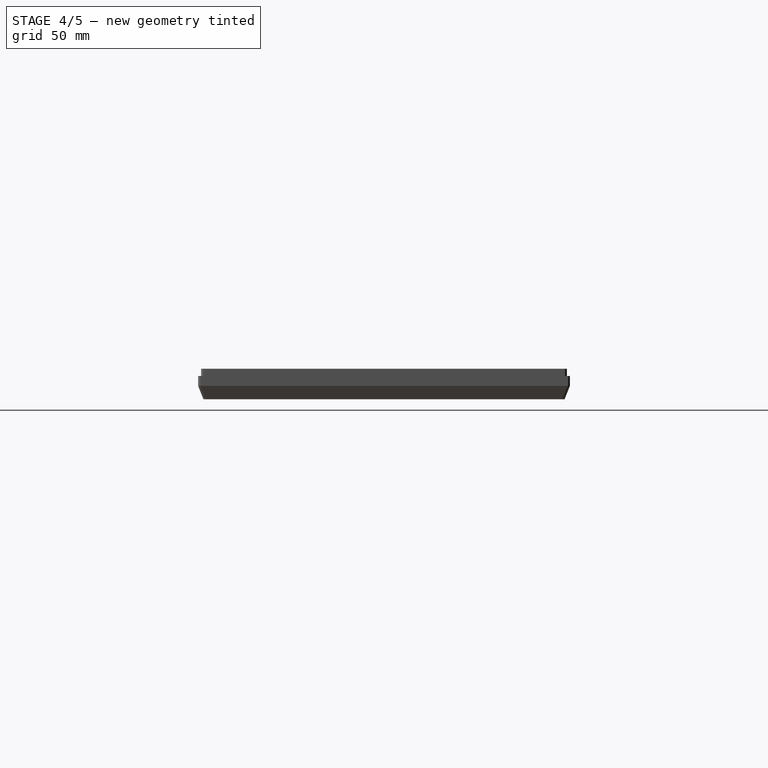
[diagram: stage 4 of 5 — right view after this stage's code; geometry added in this stage tinted green]
FEATURE [Sketcher::SketchObject] Sketch004  label="Lip"
  ExternalGeometry = -> [BaseFeature002]
  FullyConstrained = true
  MapMode = 5
  Placement = pos=(-29,6.4e-15,-6.4e-15) rot=(0.57735,0.57735,0.57735;2.0944rad)
  Support = -> [DatumPlane002]
  sketch-geometry (54):
    g0: LineSegment StartX=-98.0131 StartY=10 StartZ=0 EndX=-97 EndY=9 EndZ=0
    g1: LineSegment StartX=-97 StartY=9 StartZ=0 EndX=-97 EndY=6.59008 EndZ=0
    g2: LineSegment StartX=-97 StartY=6.59008 StartZ=0 EndX=-101 EndY=1.82306 EndZ=0
    g3: LineSegment StartX=-101 StartY=1.82306 StartZ=0 EndX=-101 EndY=1 EndZ=0
    g4: LineSegment StartX=-101 StartY=1 StartZ=0 EndX=-100.394 EndY=-0.515798 EndZ=0
    g5: LineSegment StartX=-100.394 StartY=-0.515798 StartZ=0 EndX=-97.6902 EndY=-0.515798 EndZ=0
    g6: LineSegment StartX=-97.6902 StartY=-0.515798 StartZ=0 EndX=-95.8337 EndY=-2.37234 EndZ=0
    g7: LineSegment StartX=-95.8337 StartY=-2.37234 StartZ=0 EndX=-95.8337 EndY=-4 EndZ=0
    g8: LineSegment StartX=-98.0131 StartY=10 StartZ=0 EndX=-102.3 EndY=10 EndZ=0
    g9: LineSegment StartX=-102.3 StartY=10 StartZ=0 EndX=-102.3 EndY=6 EndZ=0
    g10: LineSegment StartX=-102.5 StartY=0.711126 StartZ=0 EndX=-100.016 EndY=-5.5 EndZ=0
    g11: LineSegment StartX=-100.016 StartY=-5.5 StartZ=0 EndX=0 EndY=-5.5 EndZ=0
    g12: LineSegment StartX=-104 StartY=0.422253 StartZ=0 EndX=-99.6225 EndY=1.26528 EndZ=0
    g13: LineSegment StartX=-6 StartY=-4 StartZ=0 EndX=-3 EndY=-1.57315 EndZ=0
    g14: LineSegment StartX=-3 StartY=-1.57315 StartZ=0 EndX=0 EndY=-1.57315 EndZ=0
    g15: LineSegment StartX=-6 StartY=-4 StartZ=0 EndX=-95.8337 EndY=-4 EndZ=0
    g16: LineSegment StartX=-102.3 StartY=6 StartZ=0 EndX=-102.5 EndY=6 EndZ=0
    g17: LineSegment StartX=-102.5 StartY=6 StartZ=0 EndX=-102.5 EndY=0.711126 EndZ=0
    g18: LineSegment StartX=-100.542 StartY=8.24246 StartZ=0 EndX=-99.8 EndY=8.98492 EndZ=0
    g19: LineSegment StartX=-99.8 StartY=8.98492 StartZ=0 EndX=-99.0575 EndY=8.24246 EndZ=0
    g20: ArcOfCircle CenterX=-99.8 CenterY=7.5 CenterZ=0 NormalX=0 NormalY=0 NormalZ=1 AngleXU=0 Radius=1.05 StartAngle=2.35619 EndAngle=7.06858
    g21: LineSegment StartX=-99.0761 StartY=-2.27334 StartZ=0 EndX=-98.3337 EndY=-1.53087 EndZ=0
    g22: LineSegment StartX=-98.3337 StartY=-1.53087 StartZ=0 EndX=-97.5912 EndY=-2.27334 EndZ=0
    g23: ArcOfCircle CenterX=-98.3337 CenterY=-3.0158 CenterZ=0 NormalX=0 NormalY=0 NormalZ=1 AngleXU=0 Radius=1.05 StartAngle=2.35619 EndAngle=7.06858
    g24: LineSegment StartX=-3.74246 StartY=-3.25754 StartZ=0 EndX=-3 EndY=-2.51508 EndZ=0
    g25: LineSegment StartX=-3 StartY=-2.51508 StartZ=0 EndX=-2.25754 EndY=-3.25754 EndZ=0
    g26: ArcOfCircle CenterX=-3 CenterY=-4 CenterZ=0 NormalX=0 NormalY=0 NormalZ=1 AngleXU=0 Radius=1.05 StartAngle=2.35619 EndAngle=7.06858
    g27: LineSegment StartX=98.0131 StartY=10 StartZ=0 EndX=97 EndY=9 EndZ=0
    g28: LineSegment StartX=97 StartY=9 StartZ=0 EndX=97 EndY=6.59008 EndZ=0
    g29: LineSegment StartX=97 StartY=6.59008 StartZ=0 EndX=101 EndY=1.82306 EndZ=0
    g30: LineSegment StartX=101 StartY=1.82306 StartZ=0 EndX=101 EndY=1 EndZ=0
    g31: LineSegment StartX=101 StartY=1 StartZ=0 EndX=100.394 EndY=-0.515798 EndZ=0
    g32: LineSegment StartX=100.394 StartY=-0.515798 StartZ=0 EndX=97.6902 EndY=-0.515798 EndZ=0
    g33: LineSegment StartX=97.6902 StartY=-0.515798 StartZ=0 EndX=95.8337 EndY=-2.37234 EndZ=0
    g34: LineSegment StartX=95.8337 StartY=-2.37234 StartZ=0 EndX=95.8337 EndY=-4 EndZ=0
    g35: LineSegment StartX=98.0131 StartY=10 StartZ=0 EndX=102.3 EndY=10 EndZ=0
    g36: LineSegment StartX=102.3 StartY=10 StartZ=0 EndX=102.3 EndY=6 EndZ=0
    g37: LineSegment StartX=102.5 StartY=0.711126 StartZ=0 EndX=100.016 EndY=-5.5 EndZ=0
    g38: LineSegment StartX=100.016 StartY=-5.5 StartZ=0 EndX=0 EndY=-5.5 EndZ=0
    g39: LineSegment StartX=104 StartY=0.422253 StartZ=0 EndX=99.6225 EndY=1.26528 EndZ=0
    g40: LineSegment StartX=6 StartY=-4 StartZ=0 EndX=3 EndY=-1.57315 EndZ=0
    g41: LineSegment StartX=3 StartY=-1.57315 StartZ=0 EndX=0 EndY=-1.57315 EndZ=0
    g42: LineSegment StartX=6 StartY=-4 StartZ=0 EndX=95.8337 EndY=-4 EndZ=0
    g43: LineSegment StartX=102.3 StartY=6 StartZ=0 EndX=102.5 EndY=6 EndZ=0
    g44: LineSegment StartX=102.5 StartY=6 StartZ=0 EndX=102.5 EndY=0.711126 EndZ=0
    g45: LineSegment StartX=100.542 StartY=8.24246 StartZ=0 EndX=99.8 EndY=8.98492 EndZ=0
    g46: LineSegment StartX=99.8 StartY=8.98492 StartZ=0 EndX=99.0575 EndY=8.24246 EndZ=0
    g47: ArcOfCircle CenterX=99.8 CenterY=7.5 CenterZ=0 NormalX=0 NormalY=0 NormalZ=1 AngleXU=0 Radius=1.05 StartAngle=2.35619 EndAngle=7.06858
    g48: LineSegment StartX=99.0761 StartY=-2.27334 StartZ=0 EndX=98.3337 EndY=-1.53087 EndZ=0
    g49: LineSegment StartX=98.3337 StartY=-1.53087 StartZ=0 EndX=97.5912 EndY=-2.27334 EndZ=0
    g50: ArcOfCircle CenterX=98.3337 CenterY=-3.0158 CenterZ=0 NormalX=0 NormalY=0 NormalZ=1 AngleXU=0 Radius=1.05 StartAngle=2.35619 EndAngle=7.06858
    g51: LineSegment StartX=3.74246 StartY=-3.25754 StartZ=0 EndX=3 EndY=-2.51508 EndZ=0
    g52: LineSegment StartX=3 StartY=-2.51508 StartZ=0 EndX=2.25754 EndY=-3.25754 EndZ=0
    g53: ArcOfCircle CenterX=3 CenterY=-4 CenterZ=0 NormalX=0 NormalY=0 NormalZ=1 AngleXU=0 Radius=1.05 StartAngle=2.35619 EndAngle=7.06858
  constraints (94):
    c: Coincident(g0,g1)
    c: Coincident(g1,g2)
    c: Coincident(g2,g3)
    c: Coincident(g3,g4)
    c: Coincident(g4,g5)
    c: Coincident(g5,g6)
    c: Coincident(g6,g7)
    c: Coincident(g0,g8)
    c: Horizontal(g8)
    c: Coincident(g8,g9)
    c: Vertical(g9)
    c: Coincident(g10,g11)
    c: Horizontal(g11)
    c: Block(g12)
    c: Coincident(g13,g14)
    c: Coincident(g13,g15)
    c: Coincident(g15,g7)
    c: Coincident(g16,g9)
    c: Horizontal(g16)
    c: Coincident(g17,g16)
    c: Coincident(g10,g17)
    c: Block(g14)
    c: Block(g11)
    c: Block(g15)
    c: Block(g0)
    c: Block(g17)
    c: Block(g9)
    c: Block(g2)
    c: Block(g4)
    c: Block(g6)
    c: Coincident(g-5,g18)
    c: Coincident(g18,g-5)
    c: Coincident(g18,g19)
    c: Coincident(g19,g-4)
    c: Tangent(g19,g20) = 1.5708
    c: Coincident(g20,g18)
    c: Coincident(g21,g22)
    c: Tangent(g22,g23) = 1.5708
    c: Coincident(g23,g21)
    c: Block(g22)
    c: Block(g23)
    c: Coincident(g24,g25)
    c: Tangent(g25,g26) = 1.5708
    c: Coincident(g26,g24)
    c: Block(g24)
    c: Block(g26)
    c: Block(g25)
    c: Coincident(g27,g28)
    c: Coincident(g28,g29)
    c: Coincident(g29,g30)
    c: Coincident(g30,g31)
    c: Coincident(g31,g32)
    c: Coincident(g32,g33)
    c: Coincident(g33,g34)
    c: Coincident(g27,g35)
    c: Horizontal(g35)
    c: Coincident(g35,g36)
    c: Vertical(g36)
    c: Coincident(g37,g38)
    c: Horizontal(g38)
    c: Block(g39)
    c: Coincident(g40,g41)
    c: Coincident(g40,g42)
    c: Coincident(g42,g34)
    c: Coincident(g43,g36)
    c: Horizontal(g43)
    c: Coincident(g44,g43)
    c: Coincident(g37,g44)
    c: Block(g41)
    c: Block(g38)
    c: Block(g42)
    c: Block(g27)
    c: Block(g44)
    c: Block(g36)
    c: Block(g29)
    c: Block(g31)
    c: Block(g33)
    c: Coincident(g45,g46)
    c: Tangent(g46,g47) = -1.5708
    c: Coincident(g47,g45)
    c: Coincident(g48,g49)
    c: Tangent(g49,g50) = -1.5708
    c: Coincident(g50,g48)
    c: Block(g49)
    c: Block(g50)
    c: Coincident(g51,g52)
    c: Tangent(g52,g53) = -1.5708
    c: Coincident(g53,g51)
    c: Block(g51)
    c: Block(g53)
    c: Block(g52)
    c: Block(g47)
    c: Block(g45)
    c: Block(g46)
FEATURE [PartDesign::Pad] Pad002  label="Lip001"
  BaseFeature = -> BaseFeature002
  Direction = (1,-1e-16,1e-16)
  Length = 1.9
  Length2 = 10
  Profile = -> Sketch004
  ReferenceAxis = -> Sketch004 [N_Axis]
  Refine = true
  Type = 0
FEATURE [Sketcher::SketchObject] Sketch008  label="LeftVents"
  AttachmentOffset = pos=(0,0,95) rot=(0,0,1;0rad)
  FullyConstrained = true
  MapMode = 5
  Placement = pos=(0,-95,-2.11e-14) rot=(1,0,0;1.5708rad)
  Support = -> [XZ_Plane003]
  sketch-geometry (29):
    g0: ArcOfCircle CenterX=-154 CenterY=4 CenterZ=0 NormalX=0 NormalY=0 NormalZ=1 AngleXU=0 Radius=0.75 StartAngle=7.25e-14 EndAngle=3.14159
    g1: ArcOfCircle CenterX=-154 CenterY=-3 CenterZ=0 NormalX=0 NormalY=0 NormalZ=1 AngleXU=0 Radius=0.75 StartAngle=3.14159 EndAngle=6.28319
    g2: LineSegment StartX=-154.75 StartY=4 StartZ=0 EndX=-154.75 EndY=-3 EndZ=0
    g3: LineSegment StartX=-153.25 StartY=-3 StartZ=0 EndX=-153.25 EndY=4 EndZ=0
    g4: ArcOfCircle CenterX=-151 CenterY=4 CenterZ=0 NormalX=0 NormalY=0 NormalZ=1 AngleXU=0 Radius=0.75 StartAngle=0 EndAngle=3.14159
    g5: ArcOfCircle CenterX=-151 CenterY=-3 CenterZ=0 NormalX=0 NormalY=0 NormalZ=1 AngleXU=0 Radius=0.75 StartAngle=3.14159 EndAngle=6.28319
    g6: LineSegment StartX=-151.75 StartY=4 StartZ=0 EndX=-151.75 EndY=-3 EndZ=0
    g7: LineSegment StartX=-150.25 StartY=-3 StartZ=0 EndX=-150.25 EndY=4 EndZ=0
    g8: LineSegment StartX=-153.25 StartY=4 StartZ=0 EndX=-150.25 EndY=4 EndZ=0
    g9: ArcOfCircle CenterX=-148 CenterY=4 CenterZ=0 NormalX=0 NormalY=0 NormalZ=1 AngleXU=0 Radius=0.75 StartAngle=3e-16 EndAngle=3.14159
    g10: ArcOfCircle CenterX=-148 CenterY=-3 CenterZ=0 NormalX=0 NormalY=0 NormalZ=1 AngleXU=0 Radius=0.75 StartAngle=3.14159 EndAngle=6.28319
    g11: LineSegment StartX=-148.75 StartY=4 StartZ=0 EndX=-148.75 EndY=-3 EndZ=0
    g12: LineSegment StartX=-147.25 StartY=-3 StartZ=0 EndX=-147.25 EndY=4 EndZ=0
    g13: LineSegment StartX=-150.25 StartY=4 StartZ=0 EndX=-147.25 EndY=4 EndZ=0
    g14: ArcOfCircle CenterX=-145 CenterY=4 CenterZ=0 NormalX=0 NormalY=0 NormalZ=1 AngleXU=0 Radius=0.75 StartAngle=0 EndAngle=3.14159
    g15: ArcOfCircle CenterX=-145 CenterY=-3 CenterZ=0 NormalX=0 NormalY=0 NormalZ=1 AngleXU=0 Radius=0.75 StartAngle=3.14159 EndAngle=6.28319
    g16: LineSegment StartX=-145.75 StartY=4 StartZ=0 EndX=-145.75 EndY=-3 EndZ=0
    g17: LineSegment StartX=-144.25 StartY=-3 StartZ=0 EndX=-144.25 EndY=4 EndZ=0
    g18: LineSegment StartX=-147.25 StartY=4 StartZ=0 EndX=-144.25 EndY=4 EndZ=0
    g19: ArcOfCircle CenterX=-142 CenterY=4 CenterZ=0 NormalX=0 NormalY=0 NormalZ=1 AngleXU=0 Radius=0.75 StartAngle=2e-16 EndAngle=3.14159
    g20: ArcOfCircle CenterX=-142 CenterY=-3 CenterZ=0 NormalX=0 NormalY=0 NormalZ=1 AngleXU=0 Radius=0.75 StartAngle=3.14159 EndAngle=6.28319
    g21: LineSegment StartX=-142.75 StartY=4 StartZ=0 EndX=-142.75 EndY=-3 EndZ=0
    g22: LineSegment StartX=-141.25 StartY=-3 StartZ=0 EndX=-141.25 EndY=4 EndZ=0
    g23: LineSegment StartX=-144.25 StartY=4 StartZ=0 EndX=-141.25 EndY=4 EndZ=0
    g24: ArcOfCircle CenterX=-139 CenterY=4 CenterZ=0 NormalX=0 NormalY=0 NormalZ=1 AngleXU=0 Radius=0.75 StartAngle=0 EndAngle=3.14159
    g25: ArcOfCircle CenterX=-139 CenterY=-3 CenterZ=0 NormalX=0 NormalY=0 NormalZ=1 AngleXU=0 Radius=0.75 StartAngle=3.14159 EndAngle=6.28319
    g26: LineSegment StartX=-139.75 StartY=4 StartZ=0 EndX=-139.75 EndY=-3 EndZ=0
    g27: LineSegment StartX=-138.25 StartY=-3 StartZ=0 EndX=-138.25 EndY=4 EndZ=0
    g28: LineSegment StartX=-141.25 StartY=4 StartZ=0 EndX=-138.25 EndY=4 EndZ=0
  constraints (71):
    c: Tangent(g0,g2) = -1.5708
    c: Tangent(g2,g1) = -1.5708
    c: Tangent(g1,g3) = -1.5708
    c: Tangent(g3,g0) = -1.5708
    c: Equal(g0,g1)
    c: Vertical(g2)
    c: DistanceY(g2,g2) = 7
    c: Diameter(g0) = 1.5
    c: Tangent(g4,g6) = -1.5708
    c: Tangent(g6,g5) = -1.5708
    c: Tangent(g5,g7) = -1.5708
    c: Tangent(g7,g4) = -1.5708
    c: Equal(g4,g5)
    c: Vertical(g6)
    c: Equal(g2,g6) = 7
    c: Equal(g0,g4) = 1.5
    c: Coincident(g0,g8)
    c: Coincident(g4,g8)
    c: Distance(g8) = 3
    c: Angle(g8) = 0
    c: Tangent(g9,g11) = -1.5708
    c: Tangent(g11,g10) = -1.5708
    c: Tangent(g10,g12) = -1.5708
    c: Tangent(g12,g9) = -1.5708
    c: Equal(g9,g10)
    c: Vertical(g11)
    c: Equal(g2,g11) = 7
    c: Equal(g0,g9) = 1.5
    c: Coincident(g4,g13)
    c: Coincident(g9,g13)
    c: Equal(g8,g13)
    c: Parallel(g13,g8)
    c: Tangent(g14,g16) = -1.5708
    c: Tangent(g16,g15) = -1.5708
    c: Tangent(g15,g17) = -1.5708
    c: Tangent(g17,g14) = -1.5708
    c: Equal(g14,g15)
    c: Vertical(g16)
    c: Equal(g2,g16) = 7
    c: Equal(g0,g14) = 1.5
    c: Coincident(g9,g18)
    c: Coincident(g14,g18)
    c: Equal(g8,g18)
    c: Parallel(g18,g8)
    c: Tangent(g19,g21) = -1.5708
    c: Tangent(g21,g20) = -1.5708
    c: Tangent(g20,g22) = -1.5708
    c: Tangent(g22,g19) = -1.5708
    c: Equal(g19,g20)
    c: Vertical(g21)
    c: Equal(g2,g21) = 7
    c: Equal(g0,g19) = 1.5
    c: Coincident(g14,g23)
    c: Coincident(g19,g23)
    c: Equal(g8,g23)
    c: Parallel(g23,g8)
    c: Tangent(g24,g26) = -1.5708
    c: Tangent(g26,g25) = -1.5708
    c: Tangent(g25,g27) = -1.5708
    c: Tangent(g27,g24) = -1.5708
    c: Equal(g24,g25)
    c: Vertical(g26)
    c: Equal(g2,g26) = 7
    c: Equal(g0,g24) = 1.5
    c: Coincident(g19,g28)
    c: Coincident(g24,g28)
    c: Equal(g8,g28)
    c: Parallel(g28,g8)
    c: Block(g0)
    c: DistanceX(g0) = -154
    c: DistanceY(g0) = 4
FEATURE [PartDesign::Pocket] Pocket002  label="Vents001"
  BaseFeature = -> Pad002
  Direction = (0,1,2e-16)
  Length = 5
  Length2 = 5
  Profile = -> Sketch008
  ReferenceAxis = -> Sketch008 [N_Axis]
  Refine = true
  Reversed = true
  Type = 1
FEATURE [Sketcher::SketchObject] Sketch009  label="SupportLip"
  ExternalGeometry = -> [Pocket002]
  FullyConstrained = false
  MapMode = 5
  Placement = pos=(0,0,0) rot=(1,0,0;1.5708rad)
  Support = -> [XZ_Plane003]
  sketch-geometry (8):
    g0: LineSegment StartX=-28 StartY=-5.5 StartZ=0 EndX=-26.6 EndY=-5.5 EndZ=0
    g1: LineSegment StartX=-26.6 StartY=-5.5 StartZ=0 EndX=-26.3 EndY=-5.8 EndZ=0
    g2: LineSegment StartX=-26.3 StartY=-5.8 StartZ=0 EndX=-26.3 EndY=-6.5 EndZ=0
    g3: LineSegment StartX=-26.3 StartY=-6.5 StartZ=0 EndX=-26 EndY=-7 EndZ=0
    g4: LineSegment StartX=-26 StartY=-7 StartZ=0 EndX=-27.7 EndY=-7 EndZ=0
    g5: LineSegment StartX=-27.7 StartY=-7 StartZ=0 EndX=-27.5 EndY=-6.5 EndZ=0
    g6: LineSegment StartX=-27.5 StartY=-6.5 StartZ=0 EndX=-28 EndY=-6 EndZ=0
    g7: LineSegment StartX=-28 StartY=-6 StartZ=0 EndX=-28 EndY=-5.5 EndZ=0
  constraints (11):
    c: Horizontal(g0)
    c: Coincident(g0,g1)
    c: Coincident(g1,g2)
    c: Vertical(g2)
    c: Coincident(g2,g3)
    c: Coincident(g3,g4)
    c: Horizontal(g4)
    c: Coincident(g4,g5)
    c: Coincident(g5,g6)
    c: Coincident(g6,g7)
    c: Coincident(g7,g0)
FEATURE [PartDesign::Chamfer] Chamfer001  label="LipChamfer"
  Angle = 45
  Base = -> Pocket002 [Edge38,Edge10,Edge40,Edge39,Edge41,Edge37,Edge36,Edge34,Edge35]
  BaseFeature = -> Pocket002
  ChamferType = 0
  FlipDirection = false
  Refine = true
  Size = 0.4
  Size2 = 1
  SupportTransform = false
  UseAllEdges = false
FEATURE [PartDesign::Fillet] Fillet
  Base = -> Chamfer001 [Edge386,Edge370,Edge225,Edge403,Edge378,Edge226,Edge342,Edge361,Edge232,Edge328,Edge364,Edge233,Edge144,Edge143,Edge159,Edge148,Edge149,Edge108]
  BaseFeature = -> Chamfer001
  Radius = 1.5
  Refine = true
  SupportTransform = false
  UseAllEdges = false
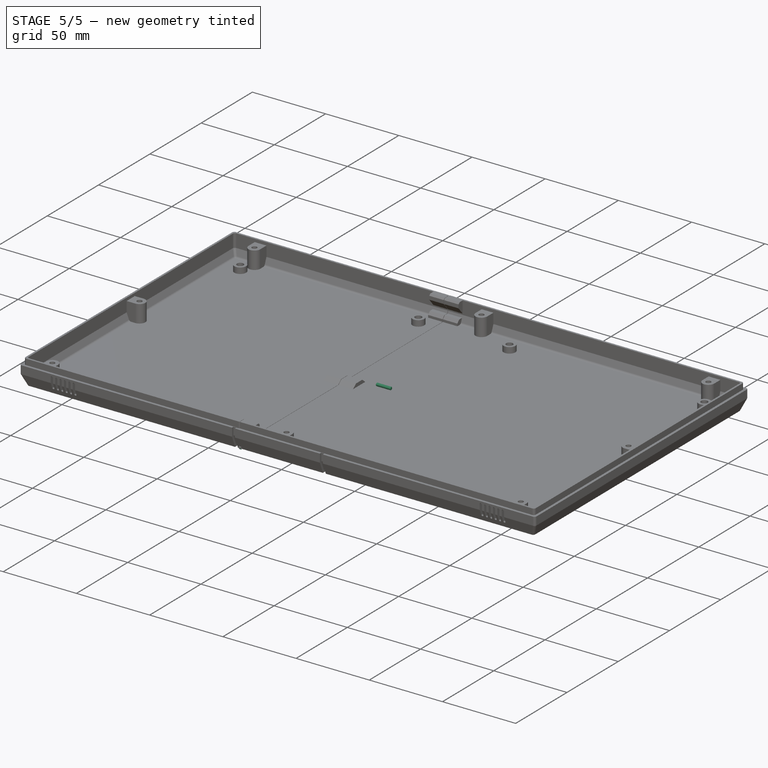
[diagram: stage 5 of 5 — iso view after this stage's code; geometry added in this stage tinted green]
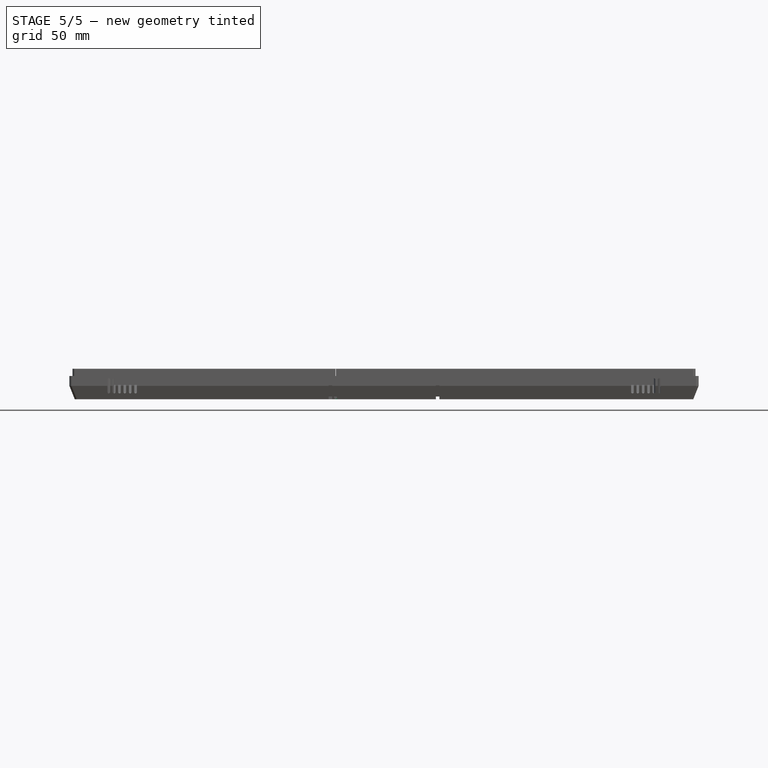
[diagram: stage 5 of 5 — front view after this stage's code; geometry added in this stage tinted green]
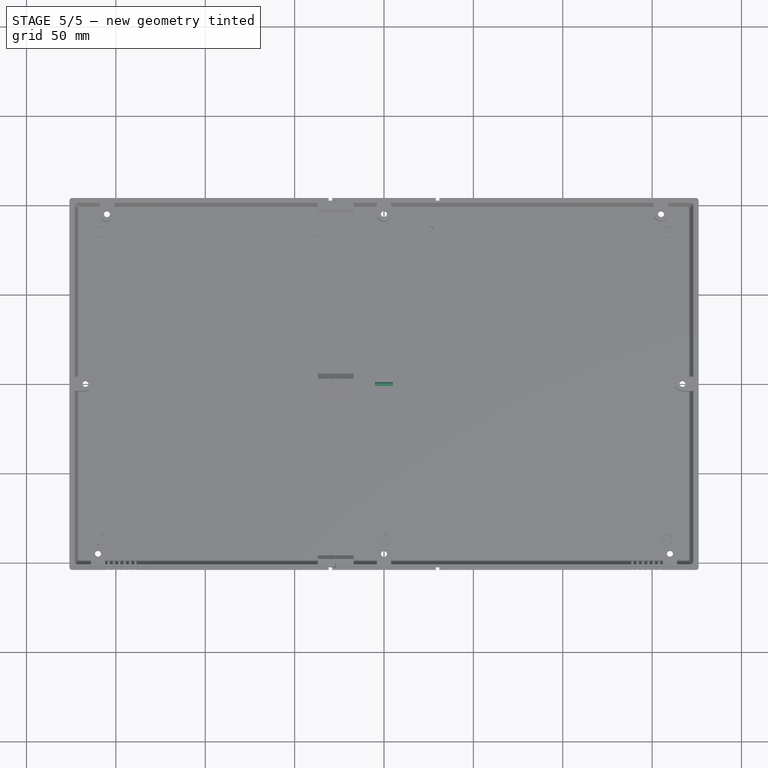
[diagram: stage 5 of 5 — top view after this stage's code; geometry added in this stage tinted green]
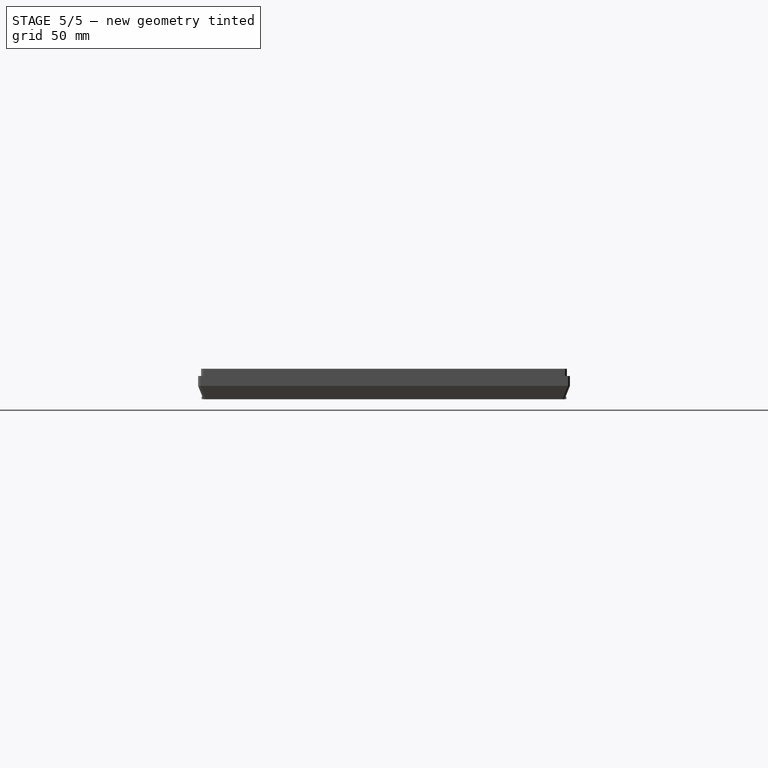
[diagram: stage 5 of 5 — right view after this stage's code; geometry added in this stage tinted green]
FEATURE [App::DocumentObjectGroup] GrExplode_Slice  label="Exploded Slice"
FEATURE [Sketcher::SketchObject] Sketch002
  FullyConstrained = true
  MapMode = 5
  Placement = pos=(0,0,0) rot=(0.57735,0.57735,0.57735;2.0944rad)
  Support = -> [YZ_Plane001]
  sketch-geometry (1):
    g0: Circle CenterX=-0.024777 CenterY=0 CenterZ=0 NormalX=0 NormalY=0 NormalZ=1 AngleXU=0 Radius=1
  constraints (3):
    c: PointOnObject(g0,g-1)
    c: Diameter(g0) = 2
    c: Block(g0)
FEATURE [PartDesign::Pad] Pad001  label="Pin001"
  Direction = (1,-2e-16,3e-16)
  Length = 10
  Length2 = 10
  Midplane = true
  Placement = pos=(0,0,0) rot=(0.57735,0.57735,0.57735;2.0944rad)
  Profile = -> Sketch002
  ReferenceAxis = -> Sketch002 [N_Axis]
  Refine = true
  Type = 0
FEATURE [PartDesign::Chamfer] Chamfer
  Angle = 45
  Base = -> Pad001 [Edge1,Edge2,Edge3]
  BaseFeature = -> Pad001
  ChamferType = 0
  FlipDirection = false
  Placement = pos=(0,0,0) rot=(0.57735,0.57735,0.57735;2.0944rad)
  Refine = true
  Size = 0.2
  Size2 = 1
  SupportTransform = false
  UseAllEdges = true
FEATURE [PartDesign::Chamfer] Chamfer003  label="CutChamfer"
  Angle = 45
  Base = -> Fillet
  BaseFeature = -> Fillet
  ChamferType = 0
  FlipDirection = false
  Refine = true
  Size = 0.4
  Size2 = 1
  SupportTransform = false
  UseAllEdges = false
FEATURE [PartDesign::Pad] Pad003  label="SupportLip001"
  BaseFeature = -> Chamfer003
  Direction = (0,-1,-2e-16)
  Length = 204
  Length2 = 10
  Midplane = true
  Profile = -> Sketch009
  ReferenceAxis = -> Sketch009 [N_Axis]
  Refine = true
  Type = 0
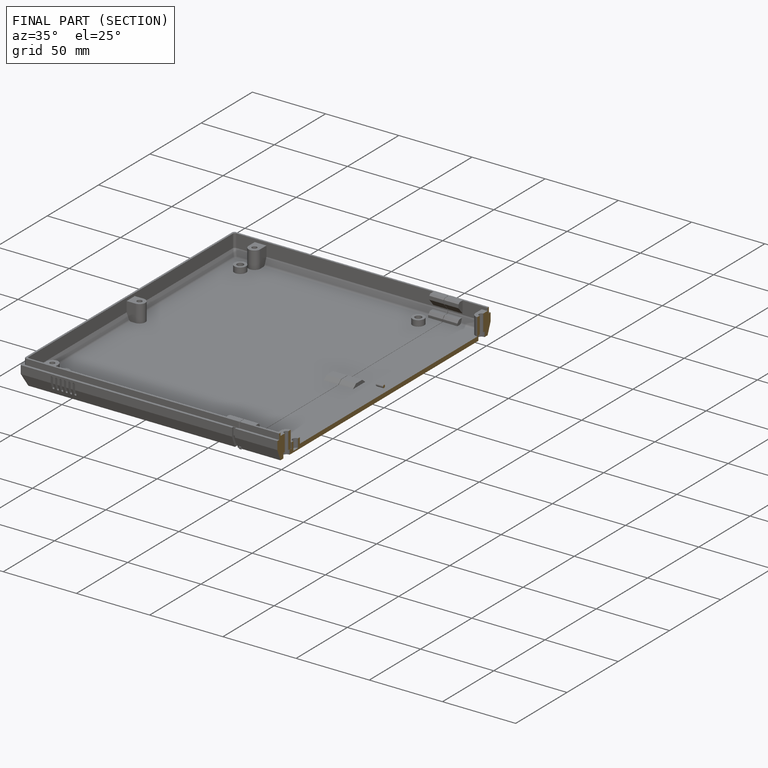
[diagram: finished part — half-section view (interior)]
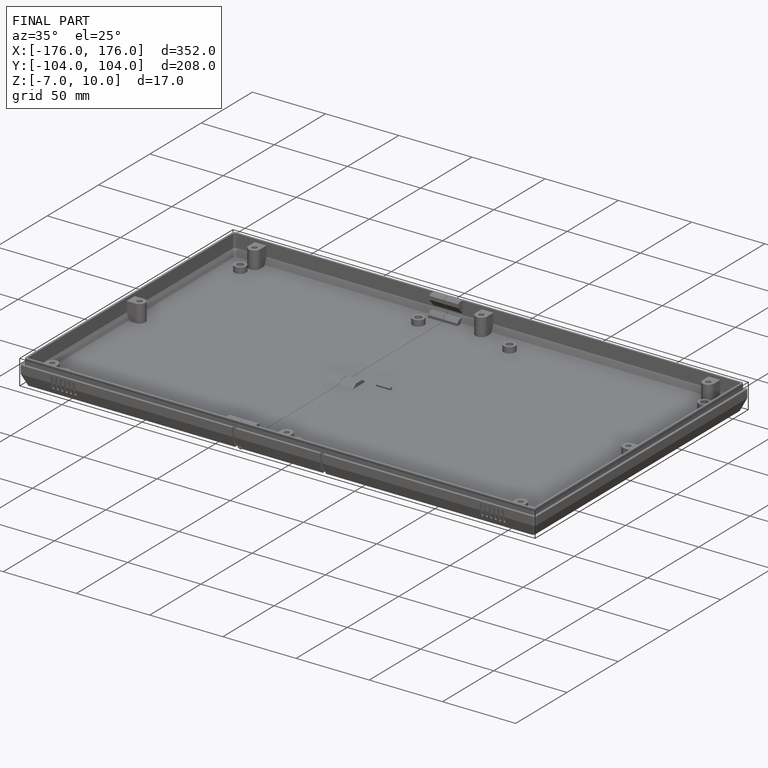
[diagram: finished part — iso view with bounding-box wireframe]
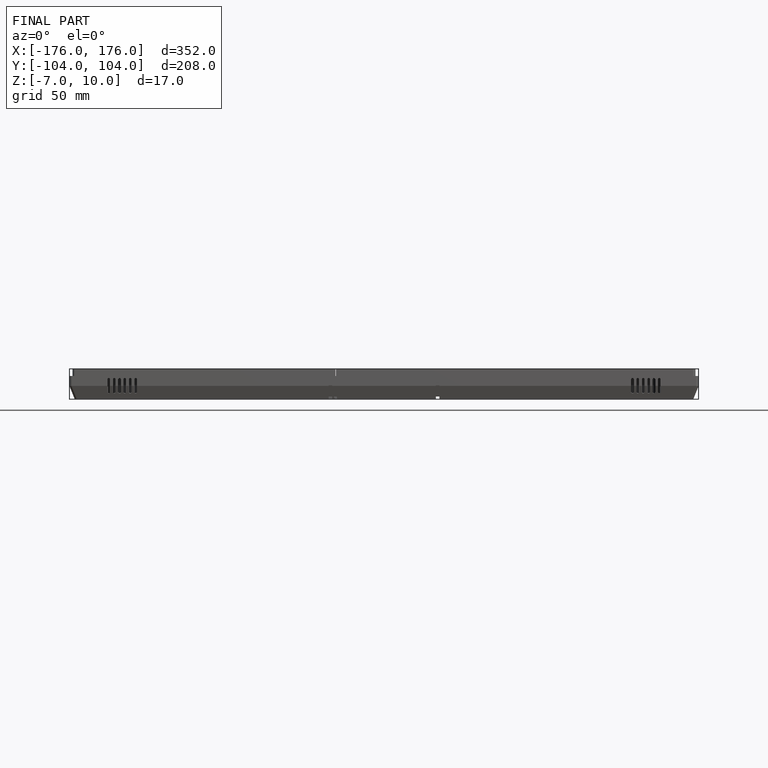
[diagram: finished part — front view with bounding-box wireframe]
